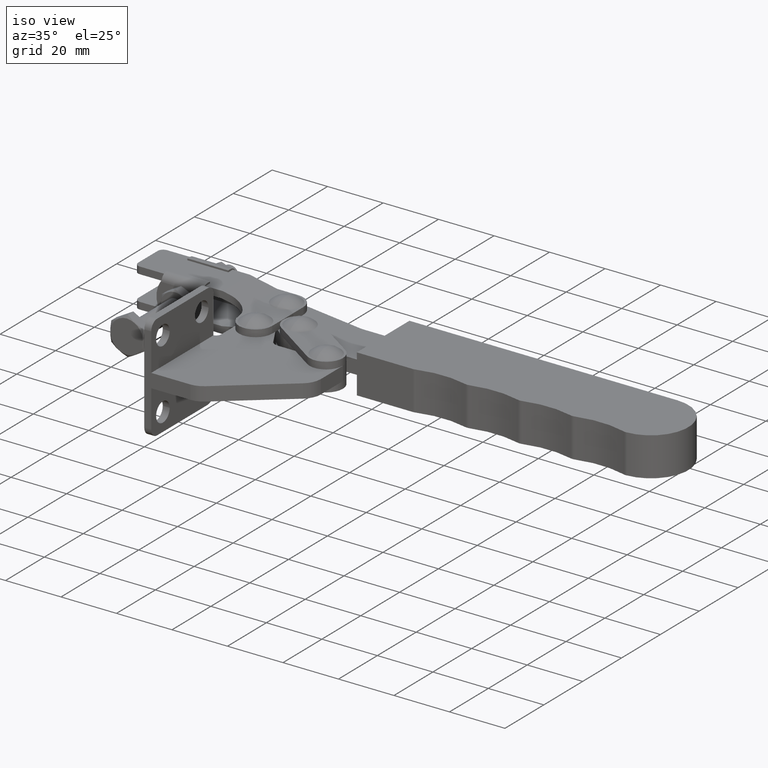
[diagram: clean part render]
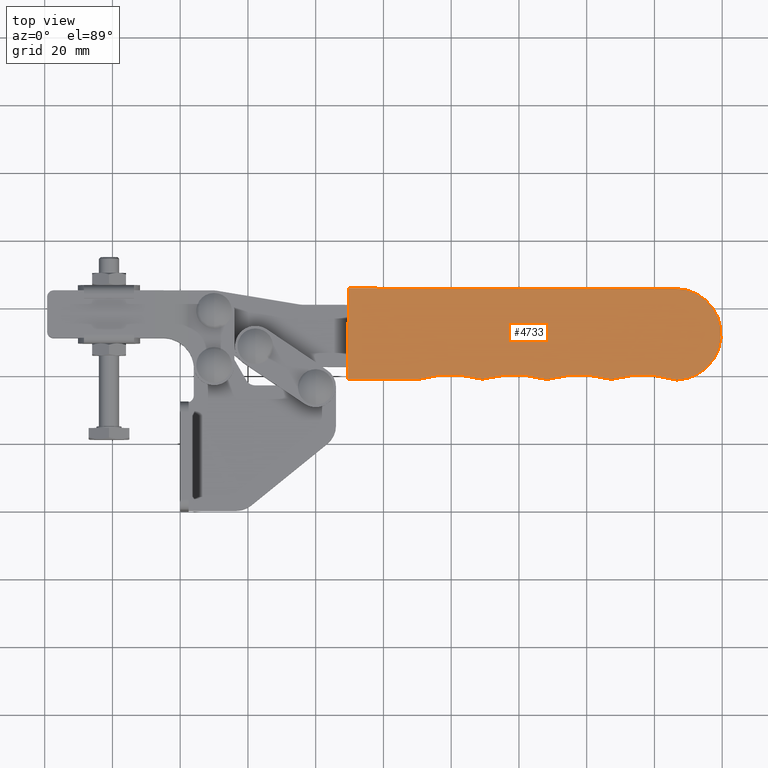
[diagram: tour spotlight — one face highlighted and labeled with its STEP entity id]
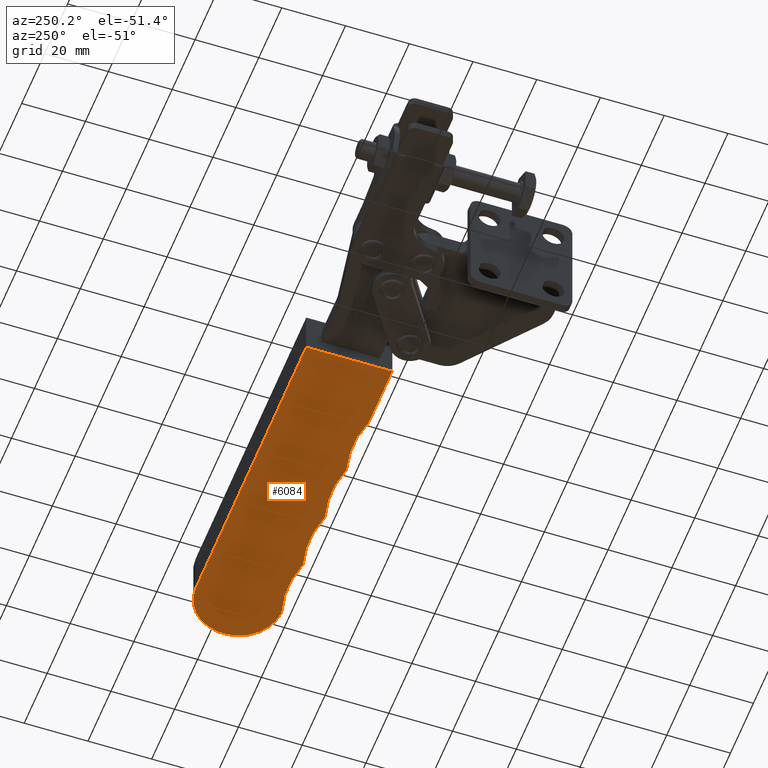
[diagram: tour spotlight — one face highlighted and labeled with its STEP entity id]
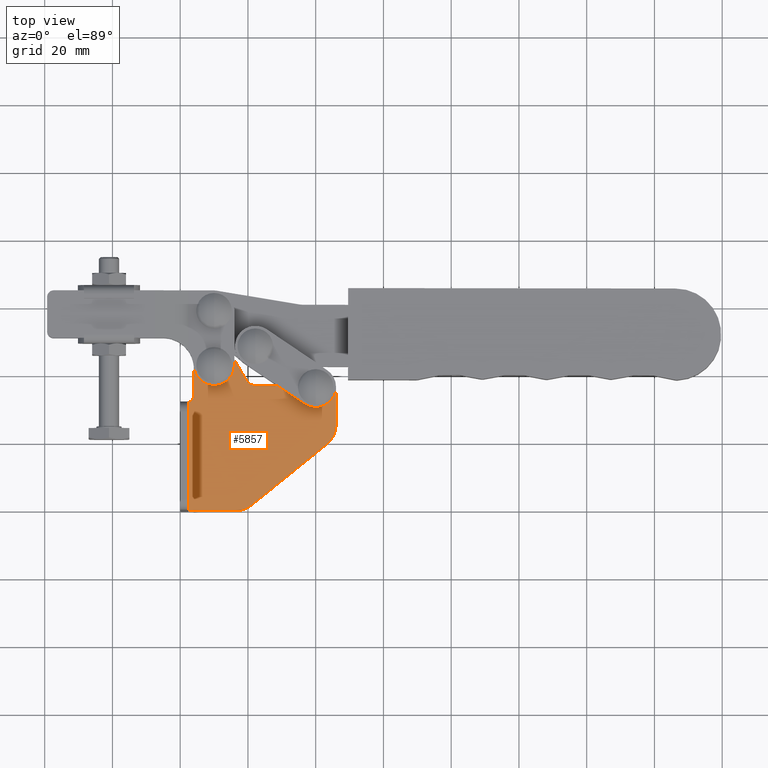
[diagram: tour spotlight — one face highlighted and labeled with its STEP entity id]
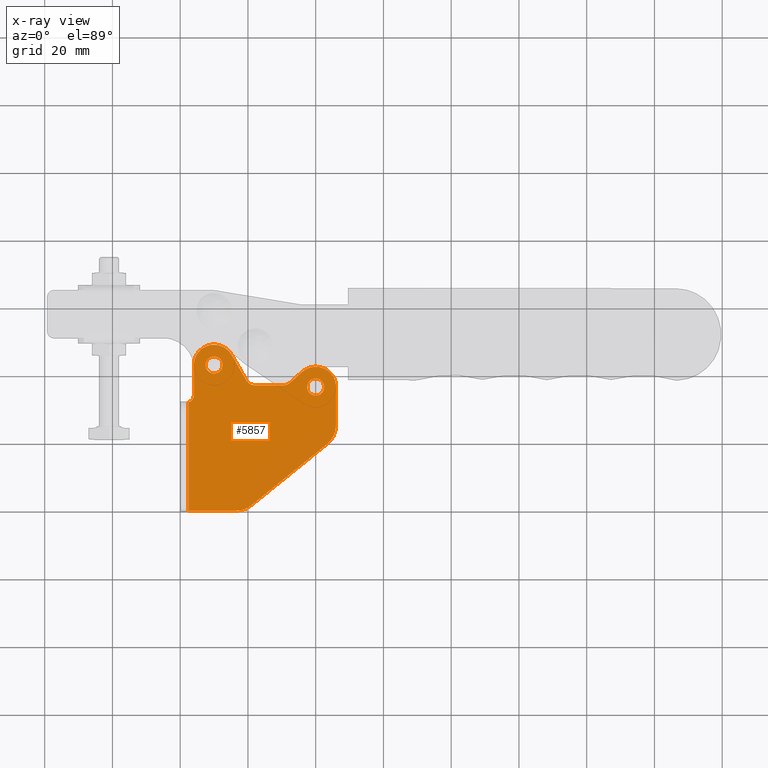
[diagram: x-ray of the same camera — body ghosted, this tour face saturated]
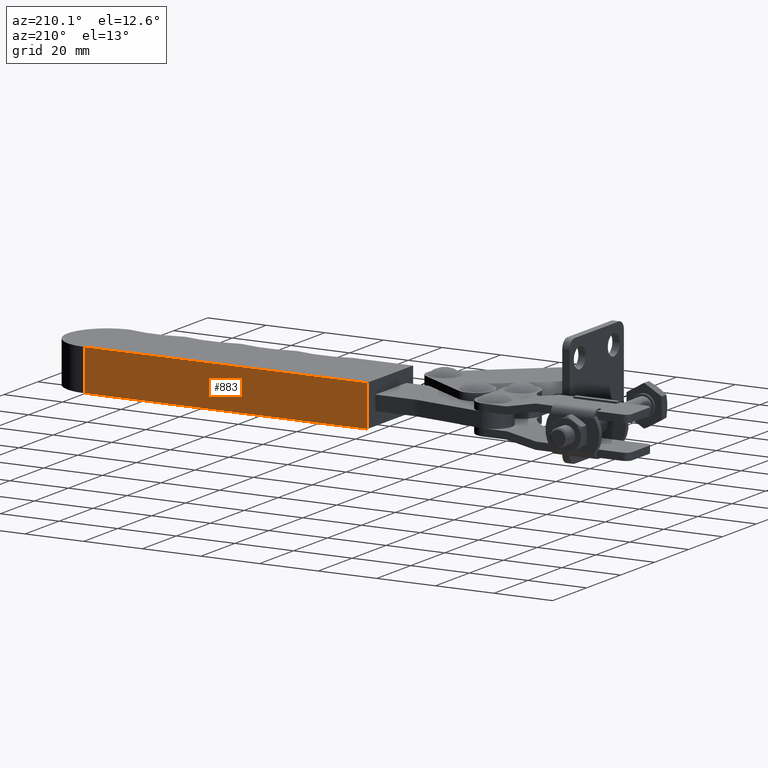
[diagram: tour spotlight — one face highlighted and labeled with its STEP entity id]
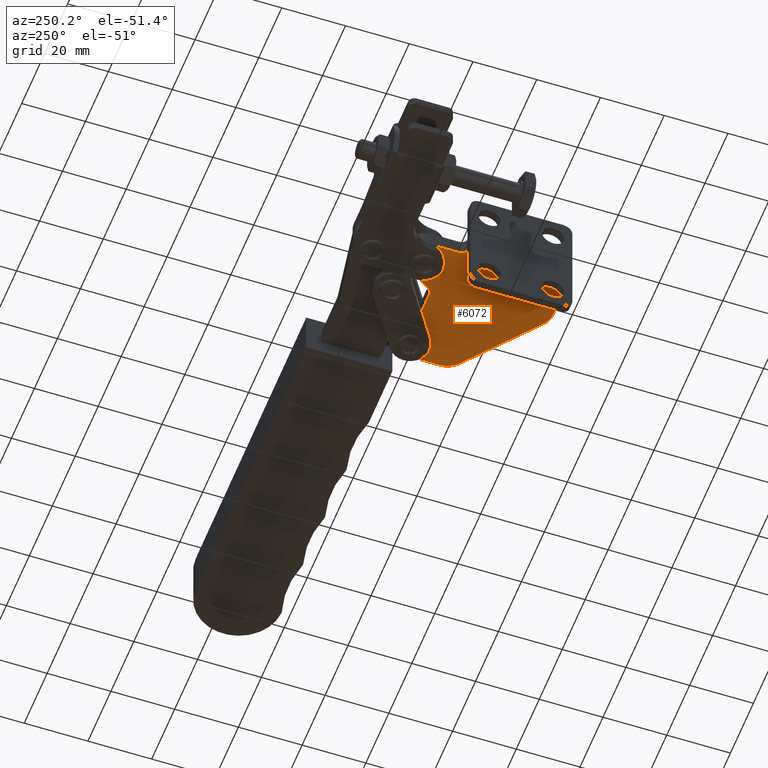
[diagram: tour spotlight — one face highlighted and labeled with its STEP entity id]
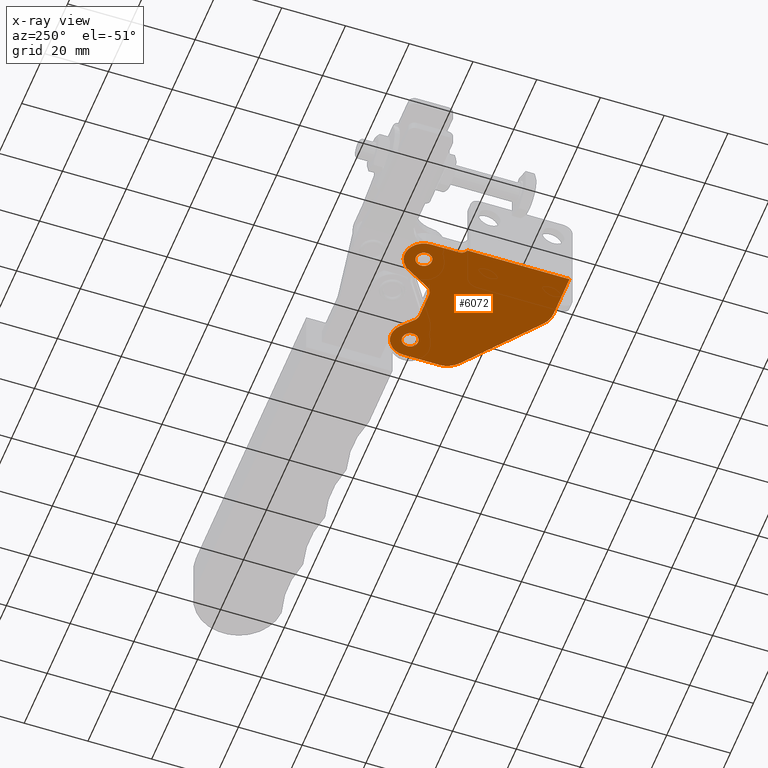
[diagram: x-ray of the same camera — body ghosted, this tour face saturated]
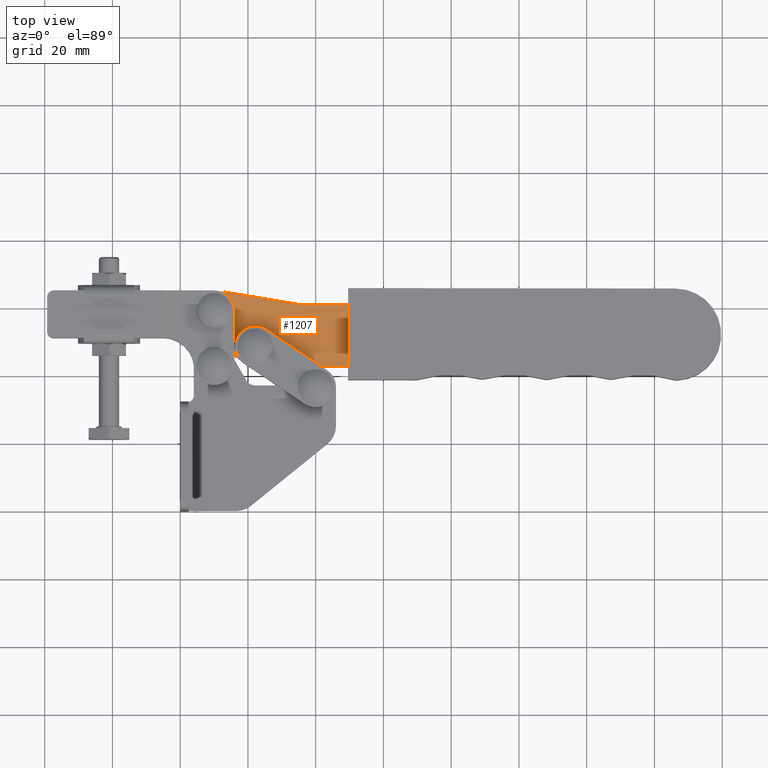
[diagram: tour spotlight — one face highlighted and labeled with its STEP entity id]
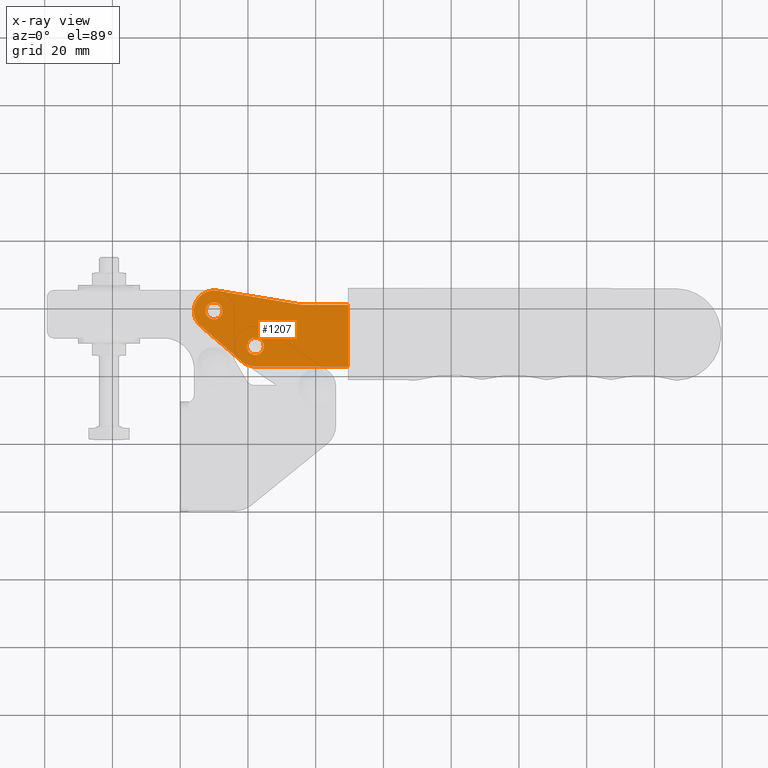
[diagram: x-ray of the same camera — body ghosted, this tour face saturated]
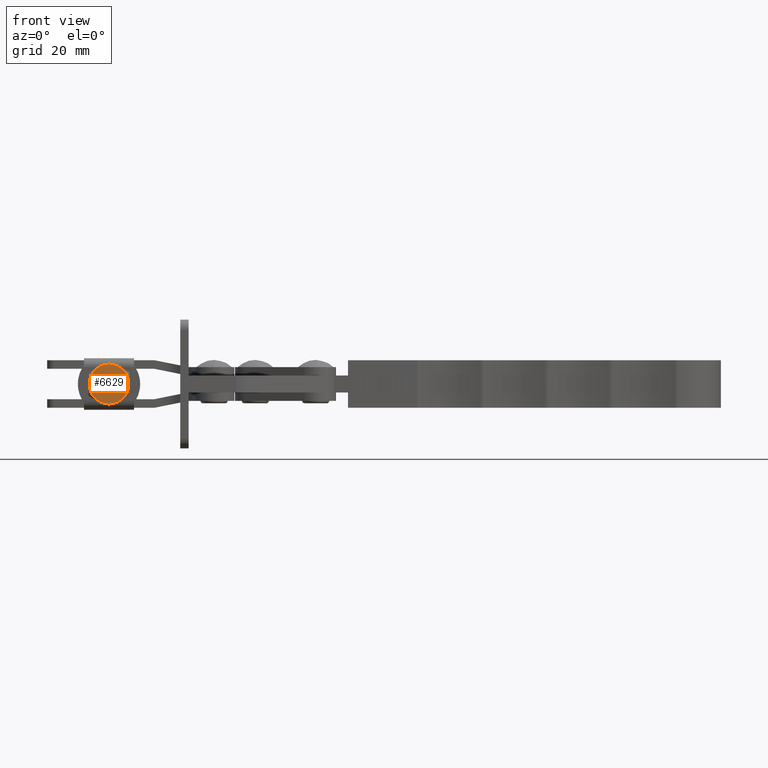
[diagram: tour spotlight — one face highlighted and labeled with its STEP entity id]
A machine part: a face-by-face anatomy tour. The part has 271 B-rep faces; the first image is the clean iso view, then the 7 largest visible faces are spotlighted one at a time (largest first), each with its STEP entity span.

Face 1 — top view, entity #4733. In plain terms, the highlighted planar face has unit normal (-0, -0, 1).
Definition (entity closure, byte-faithful):
#1 = CIRCLE ( 'NONE', #8297, 3.000000000000158500 ) ;
#55 = ORIENTED_EDGE ( 'NONE', *, *, #8341, .T. ) ;
#140 = EDGE_CURVE ( 'NONE', #1187, #3826, #5844, .T. ) ;
#179 = EDGE_CURVE ( 'NONE', #2755, #1187, #5269, .T. ) ;
#208 = VECTOR ( 'NONE', #4826, 1000.000000000000100 ) ;
#352 = DIRECTION ( 'NONE',  ( -1.108958682839140100E-014, -2.932455875418911600E-016, 1.000000000000000000 ) ) ;
#753 = AXIS2_PLACEMENT_3D ( 'NONE', #3870, #352, #953 ) ;
#844 = CARTESIAN_POINT ( 'NONE',  ( 136.5111265503220200, 8.015774924308965800, 7.000000000000215800 ) ) ;
#880 = CARTESIAN_POINT ( 'NONE',  ( 88.37882017578127100, 38.91182546141445200, 6.999999999999691800 ) ) ;
#886 = CARTESIAN_POINT ( 'NONE',  ( 126.3787864308396100, 38.86118344119974900, 7.000000000000112800 ) ) ;
#953 = DIRECTION ( 'NONE',  ( 0.9999991119752942300, -0.001332684742512857200, 1.108918617664399500E-014 ) ) ;
#1045 = PLANE ( 'NONE',  #753 ) ;
#1187 = VERTEX_POINT ( 'NONE', #4901 ) ;
#1245 = CARTESIAN_POINT ( 'NONE',  ( 79.77063265071005600, 8.091392181961614600, 6.999999999999587000 ) ) ;
#1352 = CARTESIAN_POINT ( 'NONE',  ( 49.58785542308158500, 65.64835697582714100, 6.999999999999269900 ) ) ;
#1386 = DIRECTION ( 'NONE',  ( 1.108958682839140700E-014, 2.932455875418911200E-016, -1.000000000000000000 ) ) ;
#1407 = DIRECTION ( 'NONE',  ( 0.9999991119752942300, -0.001332684742512848100, 1.108596721366429200E-014 ) ) ;
#1465 = ORIENTED_EDGE ( 'NONE', *, *, #4231, .T. ) ;
#1490 = DIRECTION ( 'NONE',  ( 1.108958682839140700E-014, 2.932455875418911200E-016, -1.000000000000000000 ) ) ;
#1534 = ORIENTED_EDGE ( 'NONE', *, *, #6954, .T. ) ;
#1734 = ORIENTED_EDGE ( 'NONE', *, *, #2344, .T. ) ;
#2092 = CARTESIAN_POINT ( 'NONE',  ( 127.9851173718016800, 38.85904270656227800, 7.000000000000131500 ) ) ;
#2157 = CIRCLE ( 'NONE', #6432, 32.00000000000000700 ) ;
#2344 = EDGE_CURVE ( 'NONE', #5936, #3406, #8708, .T. ) ;
#2438 = ORIENTED_EDGE ( 'NONE', *, *, #5134, .T. ) ;
#2465 = CARTESIAN_POINT ( 'NONE',  ( 107.3564751061141200, 38.81963475822492900, 6.999999999999902300 ) ) ;
#2479 = AXIS2_PLACEMENT_3D ( 'NONE', #1245, #5324, #5336 ) ;
#2611 = CARTESIAN_POINT ( 'NONE',  ( 69.73006471228593700, 38.62148976030108800, 6.999999999999484900 ) ) ;
#2652 = AXIS2_PLACEMENT_3D ( 'NONE', #8827, #8684, #3958 ) ;
#2677 = VECTOR ( 'NONE', #7455, 1000.000000000000100 ) ;
#2755 = VERTEX_POINT ( 'NONE', #4623 ) ;
#2765 = EDGE_CURVE ( 'NONE', #3826, #2808, #8582, .T. ) ;
#2808 = VERTEX_POINT ( 'NONE', #4808 ) ;
#2909 = AXIS2_PLACEMENT_3D ( 'NONE', #3000, #4237, #9268 ) ;
#2921 = CARTESIAN_POINT ( 'NONE',  ( 127.1858040113150700, 41.75059906114849900, 7.000000000000123500 ) ) ;
#3000 = CARTESIAN_POINT ( 'NONE',  ( 146.1995062261631200, 52.01959200017287800, 7.000000000000336600 ) ) ;
#3293 = VECTOR ( 'NONE', #4704, 1000.000000000000100 ) ;
#3300 = LINE ( 'NONE', #1352, #3293 ) ;
#3328 = VERTEX_POINT ( 'NONE', #7427 ) ;
#3334 = AXIS2_PLACEMENT_3D ( 'NONE', #844, #1386, #1407 ) ;
#3364 = EDGE_LOOP ( 'NONE', ( #9893, #1465, #8339, #1534, #5719, #4760, #7767, #8176, #3823, #9751, #2438, #55, #1734 ) ) ;
#3406 = VERTEX_POINT ( 'NONE', #4969 ) ;
#3498 = CARTESIAN_POINT ( 'NONE',  ( 146.2174974701870300, 65.51958001183948000, 7.000000000000341100 ) ) ;
#3566 = AXIS2_PLACEMENT_3D ( 'NONE', #8527, #3839, #4322 ) ;
#3786 = DIRECTION ( 'NONE',  ( 0.9999991119752943400, -0.001332684742512846800, 1.108596721366428000E-014 ) ) ;
#3788 = VERTEX_POINT ( 'NONE', #886 ) ;
#3823 = ORIENTED_EDGE ( 'NONE', *, *, #2765, .T. ) ;
#3826 = VERTEX_POINT ( 'NONE', #9701 ) ;
#3839 = DIRECTION ( 'NONE',  ( -1.108958682839140700E-014, -2.932455875418911200E-016, 1.000000000000000000 ) ) ;
#3870 = CARTESIAN_POINT ( 'NONE',  ( 117.7705989057712500, 8.040750161746126800, 7.000000000000008900 ) ) ;
#3958 = DIRECTION ( 'NONE',  ( 0.9999991119752942300, -0.001332684742512850000, 1.108596721366430800E-014 ) ) ;
#4231 = EDGE_CURVE ( 'NONE', #3788, #6227, #7883, .T. ) ;
#4237 = DIRECTION ( 'NONE',  ( -1.108958682839140700E-014, -2.932455875418911200E-016, 1.000000000000000000 ) ) ;
#4322 = DIRECTION ( 'NONE',  ( 0.9999991119752942300, -0.001332684742512379900, 1.098658201451950300E-014 ) ) ;
#4389 = EDGE_CURVE ( 'NONE', #3406, #3788, #7467, .T. ) ;
#4393 = DIRECTION ( 'NONE',  ( -1.108958682839140700E-014, -2.932455875418911200E-016, 1.000000000000000000 ) ) ;
#4421 = VERTEX_POINT ( 'NONE', #3498 ) ;
#4545 = EDGE_CURVE ( 'NONE', #2808, #5876, #7019, .T. ) ;
#4623 = CARTESIAN_POINT ( 'NONE',  ( 49.58785542308158500, 65.64835697582714100, 6.999999999999269900 ) ) ;
#4704 = DIRECTION ( 'NONE',  ( -0.9999991119752942300, 0.001332684742511708100, -1.108918617664399500E-014 ) ) ;
#4733 = ADVANCED_FACE ( 'NONE', ( #6681 ), #1045, .T. ) ;
#4760 = ORIENTED_EDGE ( 'NONE', *, *, #5733, .T. ) ;
#4802 = EDGE_CURVE ( 'NONE', #6227, #9023, #6397, .T. ) ;
#4808 = CARTESIAN_POINT ( 'NONE',  ( 70.59434018515830200, 38.74747896071826100, 6.999999999999494600 ) ) ;
#4826 = DIRECTION ( 'NONE',  ( 0.9999991119752942300, -0.001332684742512857200, 1.108918617664399500E-014 ) ) ;
#4853 = DIRECTION ( 'NONE',  ( -1.108958682839140700E-014, -2.932455875418911200E-016, 1.000000000000000000 ) ) ;
#4901 = CARTESIAN_POINT ( 'NONE',  ( 49.55187293503373500, 38.64838095249417900, 6.999999999999261000 ) ) ;
#4968 = CIRCLE ( 'NONE', #9722, 3.000000000000061300 ) ;
#4969 = CARTESIAN_POINT ( 'NONE',  ( 109.0072841298726400, 38.81743474827227700, 6.999999999999920100 ) ) ;
#5134 = EDGE_CURVE ( 'NONE', #5876, #8650, #4968, .T. ) ;
#5269 = LINE ( 'NONE', #7366, #2677 ) ;
#5324 = DIRECTION ( 'NONE',  ( 1.108958682839140700E-014, 2.932455875418911200E-016, -1.000000000000000000 ) ) ;
#5336 = DIRECTION ( 'NONE',  ( 0.9999991119752942300, -0.001332684742512850000, 1.108596721366430800E-014 ) ) ;
#5516 = CARTESIAN_POINT ( 'NONE',  ( 108.1857233696321400, 41.70274892825919000, 6.999999999999913000 ) ) ;
#5719 = ORIENTED_EDGE ( 'NONE', *, *, #8622, .T. ) ;
#5733 = EDGE_CURVE ( 'NONE', #4421, #2755, #3300, .T. ) ;
#5844 = LINE ( 'NONE', #2611, #208 ) ;
#5876 = VERTEX_POINT ( 'NONE', #880 ) ;
#5936 = VERTEX_POINT ( 'NONE', #2465 ) ;
#6227 = VERTEX_POINT ( 'NONE', #2092 ) ;
#6397 = CIRCLE ( 'NONE', #3334, 31.99999999999997200 ) ;
#6432 = AXIS2_PLACEMENT_3D ( 'NONE', #9880, #1490, #3786 ) ;
#6461 = CARTESIAN_POINT ( 'NONE',  ( 146.6086435480805200, 41.52756613993911100, 7.000000000000338400 ) ) ;
#6515 = AXIS2_PLACEMENT_3D ( 'NONE', #2921, #9148, #7569 ) ;
#6681 = FACE_OUTER_BOUND ( 'NONE', #3364, .T. ) ;
#6791 = CARTESIAN_POINT ( 'NONE',  ( 89.18583775625388900, 41.80124108136399700, 6.999999999999701600 ) ) ;
#6834 = DIRECTION ( 'NONE',  ( -1.108958682839140700E-014, -2.932455875418911200E-016, 1.000000000000000000 ) ) ;
#6885 = DIRECTION ( 'NONE',  ( 0.9999991119752942300, -0.001332684742512386000, 1.098658201451955400E-014 ) ) ;
#6915 = CARTESIAN_POINT ( 'NONE',  ( 89.98515111673791000, 38.90968472677706600, 6.999999999999709600 ) ) ;
#6954 = EDGE_CURVE ( 'NONE', #9023, #3328, #1, .T. ) ;
#6989 = DIRECTION ( 'NONE',  ( 0.9999991119752942300, -0.001332684742512342800, 1.098658201451919700E-014 ) ) ;
#7019 = CIRCLE ( 'NONE', #2479, 31.99999999999992900 ) ;
#7366 = CARTESIAN_POINT ( 'NONE',  ( 49.58785542308158500, 65.64835697582714100, 6.999999999999269900 ) ) ;
#7427 = CARTESIAN_POINT ( 'NONE',  ( 146.7255399257712200, 38.52984446558646400, 7.000000000000338400 ) ) ;
#7455 = DIRECTION ( 'NONE',  ( -0.001332684742512857200, -0.9999991119752942300, -3.080242502995326500E-016 ) ) ;
#7467 = CIRCLE ( 'NONE', #2652, 31.99999999999992900 ) ;
#7569 = DIRECTION ( 'NONE',  ( 0.9999991119752942300, -0.001332684742512379900, 1.098658201451950300E-014 ) ) ;
#7767 = ORIENTED_EDGE ( 'NONE', *, *, #179, .T. ) ;
#7883 = CIRCLE ( 'NONE', #6515, 3.000000000000075100 ) ;
#7983 = CARTESIAN_POINT ( 'NONE',  ( 145.7431420911297000, 38.65512689288498600, 7.000000000000327700 ) ) ;
#8176 = ORIENTED_EDGE ( 'NONE', *, *, #140, .T. ) ;
#8297 = AXIS2_PLACEMENT_3D ( 'NONE', #6461, #4853, #6989 ) ;
#8339 = ORIENTED_EDGE ( 'NONE', *, *, #4802, .T. ) ;
#8341 = EDGE_CURVE ( 'NONE', #8650, #5936, #2157, .T. ) ;
#8345 = CIRCLE ( 'NONE', #2909, 13.50000000000013000 ) ;
#8527 = CARTESIAN_POINT ( 'NONE',  ( 69.73406276651347500, 41.62148709622697900, 6.999999999999485700 ) ) ;
#8582 = CIRCLE ( 'NONE', #3566, 3.000000000000075100 ) ;
#8613 = DIRECTION ( 'NONE',  ( 0.9999991119752942300, -0.001332684742512373600, 1.098658201451945100E-014 ) ) ;
#8622 = EDGE_CURVE ( 'NONE', #3328, #4421, #8345, .T. ) ;
#8650 = VERTEX_POINT ( 'NONE', #6915 ) ;
#8684 = DIRECTION ( 'NONE',  ( 1.108958682839140700E-014, 2.932455875418911200E-016, -1.000000000000000000 ) ) ;
#8708 = CIRCLE ( 'NONE', #8836, 3.000000000000089300 ) ;
#8827 = CARTESIAN_POINT ( 'NONE',  ( 117.7705989057712500, 8.040750161746126800, 7.000000000000008900 ) ) ;
#8836 = AXIS2_PLACEMENT_3D ( 'NONE', #5516, #4393, #8613 ) ;
#9023 = VERTEX_POINT ( 'NONE', #7983 ) ;
#9148 = DIRECTION ( 'NONE',  ( -1.108958682839140700E-014, -2.932455875418911200E-016, 1.000000000000000000 ) ) ;
#9268 = DIRECTION ( 'NONE',  ( 0.9999991119752942300, -0.001332684742512657500, 1.111508004977721300E-014 ) ) ;
#9701 = CARTESIAN_POINT ( 'NONE',  ( 69.73006471228593700, 38.62148976030108800, 6.999999999999484900 ) ) ;
#9722 = AXIS2_PLACEMENT_3D ( 'NONE', #6791, #6834, #6885 ) ;
#9751 = ORIENTED_EDGE ( 'NONE', *, *, #4545, .T. ) ;
#9880 = CARTESIAN_POINT ( 'NONE',  ( 98.51116029526103500, 8.066416944524455300, 6.999999999999795700 ) ) ;
#9893 = ORIENTED_EDGE ( 'NONE', *, *, #4389, .T. ) ;

Face 2 — auxiliary view, entity #6084. In plain terms, the highlighted planar face has unit normal (-0, -0, 1).
Definition (entity closure, byte-faithful):
#14 = ORIENTED_EDGE ( 'NONE', *, *, #6121, .F. ) ;
#35 = EDGE_CURVE ( 'NONE', #2121, #2837, #3706, .T. ) ;
#99 = CARTESIAN_POINT ( 'NONE',  ( 88.37882017578141400, 38.91182546141445200, -7.000000000000304600 ) ) ;
#186 = CARTESIAN_POINT ( 'NONE',  ( 49.58785542308173400, 65.64835697582715600, -7.000000000000727400 ) ) ;
#212 = DIRECTION ( 'NONE',  ( 0.9999991119752942300, -0.001332684742512386000, 1.098658201451955400E-014 ) ) ;
#233 = CARTESIAN_POINT ( 'NONE',  ( 49.58785542308173400, 65.64835697582715600, -7.000000000000727400 ) ) ;
#568 = DIRECTION ( 'NONE',  ( 0.9999991119752942300, -0.001332684742512857200, 1.108918617664399500E-014 ) ) ;
#675 = VERTEX_POINT ( 'NONE', #3270 ) ;
#733 = EDGE_CURVE ( 'NONE', #2837, #4343, #3128, .T. ) ;
#743 = DIRECTION ( 'NONE',  ( 0.9999991119752942300, -0.001332684742512379900, 1.098658201451950300E-014 ) ) ;
#750 = PLANE ( 'NONE',  #1788 ) ;
#786 = DIRECTION ( 'NONE',  ( -1.108958682839140700E-014, -2.932455875418911200E-016, 1.000000000000000000 ) ) ;
#925 = CARTESIAN_POINT ( 'NONE',  ( 107.3564751061142700, 38.81963475822493600, -7.000000000000095000 ) ) ;
#946 = CARTESIAN_POINT ( 'NONE',  ( 126.3787864308397700, 38.86118344119974900, -6.999999999999883600 ) ) ;
#977 = EDGE_CURVE ( 'NONE', #7906, #5388, #2734, .T. ) ;
#1047 = EDGE_CURVE ( 'NONE', #5388, #2574, #6746, .T. ) ;
#1203 = AXIS2_PLACEMENT_3D ( 'NONE', #6299, #8440, #9545 ) ;
#1219 = ORIENTED_EDGE ( 'NONE', *, *, #4300, .F. ) ;
#1313 = CIRCLE ( 'NONE', #2269, 3.000000000000075100 ) ;
#1328 = AXIS2_PLACEMENT_3D ( 'NONE', #4553, #4742, #212 ) ;
#1445 = DIRECTION ( 'NONE',  ( -1.108958682839140700E-014, -2.932455875418911200E-016, 1.000000000000000000 ) ) ;
#1531 = VERTEX_POINT ( 'NONE', #2926 ) ;
#1640 = AXIS2_PLACEMENT_3D ( 'NONE', #3048, #4932, #7595 ) ;
#1759 = CARTESIAN_POINT ( 'NONE',  ( 49.55187293503388400, 38.64838095249417900, -7.000000000000735400 ) ) ;
#1788 = AXIS2_PLACEMENT_3D ( 'NONE', #4434, #4037, #3489 ) ;
#1831 = EDGE_CURVE ( 'NONE', #4343, #3120, #2290, .T. ) ;
#2022 = VECTOR ( 'NONE', #5736, 1000.000000000000100 ) ;
#2031 = LINE ( 'NONE', #4579, #2022 ) ;
#2073 = ORIENTED_EDGE ( 'NONE', *, *, #977, .F. ) ;
#2121 = VERTEX_POINT ( 'NONE', #946 ) ;
#2189 = FACE_OUTER_BOUND ( 'NONE', #9009, .T. ) ;
#2269 = AXIS2_PLACEMENT_3D ( 'NONE', #7581, #786, #743 ) ;
#2290 = CIRCLE ( 'NONE', #7858, 3.000000000000158500 ) ;
#2574 = VERTEX_POINT ( 'NONE', #7143 ) ;
#2651 = EDGE_CURVE ( 'NONE', #2574, #3593, #5887, .T. ) ;
#2734 = CIRCLE ( 'NONE', #4146, 31.99999999999992900 ) ;
#2837 = VERTEX_POINT ( 'NONE', #4082 ) ;
#2896 = ORIENTED_EDGE ( 'NONE', *, *, #5009, .F. ) ;
#2926 = CARTESIAN_POINT ( 'NONE',  ( 109.0072841298728000, 38.81743474827228400, -7.000000000000076400 ) ) ;
#2990 = AXIS2_PLACEMENT_3D ( 'NONE', #8237, #3590, #9035 ) ;
#3048 = CARTESIAN_POINT ( 'NONE',  ( 108.1857233696322900, 41.70274892825919700, -7.000000000000084400 ) ) ;
#3120 = VERTEX_POINT ( 'NONE', #4018 ) ;
#3125 = CARTESIAN_POINT ( 'NONE',  ( 136.5111265503221900, 8.015774924308972900, -6.999999999999780600 ) ) ;
#3128 = CIRCLE ( 'NONE', #9731, 31.99999999999997200 ) ;
#3270 = CARTESIAN_POINT ( 'NONE',  ( 146.2174974701872000, 65.51958001183949400, -6.999999999999655400 ) ) ;
#3479 = ORIENTED_EDGE ( 'NONE', *, *, #8238, .F. ) ;
#3489 = DIRECTION ( 'NONE',  ( 0.9999991119752942300, -0.001332684742512857200, 1.108918617664399500E-014 ) ) ;
#3564 = CARTESIAN_POINT ( 'NONE',  ( 145.7431420911298700, 38.65512689288499400, -6.999999999999668700 ) ) ;
#3590 = DIRECTION ( 'NONE',  ( 1.108958682839140700E-014, 2.932455875418911200E-016, -1.000000000000000000 ) ) ;
#3593 = VERTEX_POINT ( 'NONE', #925 ) ;
#3706 = CIRCLE ( 'NONE', #1203, 3.000000000000075100 ) ;
#4013 = EDGE_CURVE ( 'NONE', #6260, #5513, #8605, .T. ) ;
#4018 = CARTESIAN_POINT ( 'NONE',  ( 146.7255399257713900, 38.52984446558646400, -6.999999999999658100 ) ) ;
#4037 = DIRECTION ( 'NONE',  ( -1.108958682839140100E-014, -2.932455875418911600E-016, 1.000000000000000000 ) ) ;
#4082 = CARTESIAN_POINT ( 'NONE',  ( 127.9851173718018500, 38.85904270656227800, -6.999999999999865900 ) ) ;
#4146 = AXIS2_PLACEMENT_3D ( 'NONE', #7170, #5352, #9339 ) ;
#4300 = EDGE_CURVE ( 'NONE', #3593, #1531, #7549, .T. ) ;
#4343 = VERTEX_POINT ( 'NONE', #3564 ) ;
#4434 = CARTESIAN_POINT ( 'NONE',  ( 117.7705989057714200, 8.040750161746133900, -6.999999999999987600 ) ) ;
#4553 = CARTESIAN_POINT ( 'NONE',  ( 89.18583775625401700, 41.80124108136400500, -7.000000000000294900 ) ) ;
#4579 = CARTESIAN_POINT ( 'NONE',  ( 49.58785542308173400, 65.64835697582715600, -7.000000000000727400 ) ) ;
#4739 = VERTEX_POINT ( 'NONE', #233 ) ;
#4742 = DIRECTION ( 'NONE',  ( -1.108958682839140700E-014, -2.932455875418911200E-016, 1.000000000000000000 ) ) ;
#4932 = DIRECTION ( 'NONE',  ( -1.108958682839140700E-014, -2.932455875418911200E-016, 1.000000000000000000 ) ) ;
#5009 = EDGE_CURVE ( 'NONE', #3120, #675, #5552, .T. ) ;
#5033 = CARTESIAN_POINT ( 'NONE',  ( 146.1995062261632900, 52.01959200017287800, -6.999999999999659800 ) ) ;
#5059 = DIRECTION ( 'NONE',  ( -1.108958682839140700E-014, -2.932455875418911200E-016, 1.000000000000000000 ) ) ;
#5068 = DIRECTION ( 'NONE',  ( 0.9999991119752942300, -0.001332684742512657500, 1.111508004977721300E-014 ) ) ;
#5236 = ORIENTED_EDGE ( 'NONE', *, *, #4013, .F. ) ;
#5352 = DIRECTION ( 'NONE',  ( 1.108958682839140700E-014, 2.932455875418911200E-016, -1.000000000000000000 ) ) ;
#5388 = VERTEX_POINT ( 'NONE', #99 ) ;
#5409 = DIRECTION ( 'NONE',  ( 0.9999991119752942300, -0.001332684742512848100, 1.108596721366429200E-014 ) ) ;
#5423 = VECTOR ( 'NONE', #8005, 1000.000000000000100 ) ;
#5513 = VERTEX_POINT ( 'NONE', #6221 ) ;
#5552 = CIRCLE ( 'NONE', #8866, 13.50000000000013000 ) ;
#5684 = ORIENTED_EDGE ( 'NONE', *, *, #9368, .F. ) ;
#5694 = CARTESIAN_POINT ( 'NONE',  ( 146.6086435480806600, 41.52756613993911800, -6.999999999999658100 ) ) ;
#5736 = DIRECTION ( 'NONE',  ( -0.001332684742512857200, -0.9999991119752942300, -3.080242502995326500E-016 ) ) ;
#5806 = ORIENTED_EDGE ( 'NONE', *, *, #1047, .F. ) ;
#5887 = CIRCLE ( 'NONE', #9517, 32.00000000000002100 ) ;
#6084 = ADVANCED_FACE ( 'NONE', ( #2189 ), #750, .F. ) ;
#6121 = EDGE_CURVE ( 'NONE', #4739, #6260, #2031, .T. ) ;
#6221 = CARTESIAN_POINT ( 'NONE',  ( 69.73006471228607900, 38.62148976030109500, -7.000000000000511600 ) ) ;
#6260 = VERTEX_POINT ( 'NONE', #1759 ) ;
#6299 = CARTESIAN_POINT ( 'NONE',  ( 127.1858040113152400, 41.75059906114850600, -6.999999999999873900 ) ) ;
#6746 = CIRCLE ( 'NONE', #1328, 3.000000000000061300 ) ;
#7143 = CARTESIAN_POINT ( 'NONE',  ( 89.98515111673806600, 38.90968472677706600, -7.000000000000286900 ) ) ;
#7154 = EDGE_CURVE ( 'NONE', #675, #4739, #9811, .T. ) ;
#7170 = CARTESIAN_POINT ( 'NONE',  ( 79.77063265071019800, 8.091392181961621700, -7.000000000000409500 ) ) ;
#7301 = ORIENTED_EDGE ( 'NONE', *, *, #733, .F. ) ;
#7327 = CARTESIAN_POINT ( 'NONE',  ( 69.73006471228607900, 38.62148976030109500, -7.000000000000511600 ) ) ;
#7549 = CIRCLE ( 'NONE', #1640, 3.000000000000089300 ) ;
#7581 = CARTESIAN_POINT ( 'NONE',  ( 69.73406276651363100, 41.62148709622697900, -7.000000000000510700 ) ) ;
#7595 = DIRECTION ( 'NONE',  ( 0.9999991119752942300, -0.001332684742512373600, 1.098658201451945100E-014 ) ) ;
#7858 = AXIS2_PLACEMENT_3D ( 'NONE', #5694, #1445, #8136 ) ;
#7906 = VERTEX_POINT ( 'NONE', #8099 ) ;
#7999 = ORIENTED_EDGE ( 'NONE', *, *, #35, .F. ) ;
#8005 = DIRECTION ( 'NONE',  ( -0.9999991119752942300, 0.001332684742511708100, -1.108918617664399500E-014 ) ) ;
#8099 = CARTESIAN_POINT ( 'NONE',  ( 70.59434018515844400, 38.74747896071826100, -7.000000000000502700 ) ) ;
#8136 = DIRECTION ( 'NONE',  ( 0.9999991119752942300, -0.001332684742512342800, 1.098658201451919700E-014 ) ) ;
#8237 = CARTESIAN_POINT ( 'NONE',  ( 117.7705989057714200, 8.040750161746133900, -6.999999999999987600 ) ) ;
#8238 = EDGE_CURVE ( 'NONE', #5513, #7906, #1313, .T. ) ;
#8285 = ORIENTED_EDGE ( 'NONE', *, *, #2651, .F. ) ;
#8440 = DIRECTION ( 'NONE',  ( -1.108958682839140700E-014, -2.932455875418911200E-016, 1.000000000000000000 ) ) ;
#8550 = DIRECTION ( 'NONE',  ( 1.108958682839140700E-014, 2.932455875418911200E-016, -1.000000000000000000 ) ) ;
#8589 = ORIENTED_EDGE ( 'NONE', *, *, #1831, .F. ) ;
#8605 = LINE ( 'NONE', #7327, #8655 ) ;
#8655 = VECTOR ( 'NONE', #568, 1000.000000000000100 ) ;
#8661 = ORIENTED_EDGE ( 'NONE', *, *, #7154, .F. ) ;
#8866 = AXIS2_PLACEMENT_3D ( 'NONE', #5033, #5059, #5068 ) ;
#9009 = EDGE_LOOP ( 'NONE', ( #5684, #1219, #8285, #5806, #2073, #3479, #5236, #14, #8661, #2896, #8589, #7301, #7999 ) ) ;
#9035 = DIRECTION ( 'NONE',  ( 0.9999991119752942300, -0.001332684742512850000, 1.108596721366430800E-014 ) ) ;
#9055 = DIRECTION ( 'NONE',  ( 1.108958682839140700E-014, 2.932455875418911200E-016, -1.000000000000000000 ) ) ;
#9105 = CARTESIAN_POINT ( 'NONE',  ( 98.51116029526119200, 8.066416944524462500, -7.000000000000201600 ) ) ;
#9187 = DIRECTION ( 'NONE',  ( 0.9999991119752943400, -0.001332684742512846100, 1.108596721366427500E-014 ) ) ;
#9339 = DIRECTION ( 'NONE',  ( 0.9999991119752942300, -0.001332684742512850000, 1.108596721366430800E-014 ) ) ;
#9368 = EDGE_CURVE ( 'NONE', #1531, #2121, #9901, .T. ) ;
#9517 = AXIS2_PLACEMENT_3D ( 'NONE', #9105, #9055, #9187 ) ;
#9545 = DIRECTION ( 'NONE',  ( 0.9999991119752942300, -0.001332684742512379900, 1.098658201451950300E-014 ) ) ;
#9731 = AXIS2_PLACEMENT_3D ( 'NONE', #3125, #8550, #5409 ) ;
#9811 = LINE ( 'NONE', #186, #5423 ) ;
#9901 = CIRCLE ( 'NONE', #2990, 31.99999999999992900 ) ;

Face 3 — top view, entity #5857. An x-ray twin of the same camera follows (body ghosted, this face saturated) — the face is partly hidden behind the body. In plain terms, the highlighted planar face has unit normal (0, 0, 1).
Definition (entity closure, byte-faithful):
#17 = VECTOR ( 'NONE', #7663, 1000.000000000000100 ) ;
#77 = DIRECTION ( 'NONE',  ( -1.000000000000000000, -1.001705081012091700E-014, 0.0000000000000000000 ) ) ;
#104 = CARTESIAN_POINT ( 'NONE',  ( 0.0000000000000000000, 0.0000000000000000000, 2.500000000000000000 ) ) ;
#124 = VERTEX_POINT ( 'NONE', #8370 ) ;
#149 = DIRECTION ( 'NONE',  ( 0.0000000000000000000, -1.000000000000000000, 0.0000000000000000000 ) ) ;
#165 = DIRECTION ( 'NONE',  ( 1.000000000000000000, 0.0000000000000000000, 0.0000000000000000000 ) ) ;
#170 = DIRECTION ( 'NONE',  ( -0.0000000000000000000, 0.0000000000000000000, 1.000000000000000000 ) ) ;
#256 = CARTESIAN_POINT ( 'NONE',  ( 4.000000000002945200, 43.00000000000172700, 2.500000000000000000 ) ) ;
#312 = ORIENTED_EDGE ( 'NONE', *, *, #3006, .F. ) ;
#387 = VERTEX_POINT ( 'NONE', #2819 ) ;
#422 = VERTEX_POINT ( 'NONE', #5265 ) ;
#442 = AXIS2_PLACEMENT_3D ( 'NONE', #104, #170, #5431 ) ;
#470 = AXIS2_PLACEMENT_3D ( 'NONE', #1260, #8787, #8674 ) ;
#564 = DIRECTION ( 'NONE',  ( -0.0000000000000000000, 0.0000000000000000000, 1.000000000000000000 ) ) ;
#570 = CARTESIAN_POINT ( 'NONE',  ( 7.536256893266576100, -9.306502208409842300, 2.500000000000000000 ) ) ;
#630 = CARTESIAN_POINT ( 'NONE',  ( 2.499999999999986200, 32.00000000000002800, 2.499999999999946700 ) ) ;
#779 = VERTEX_POINT ( 'NONE', #2134 ) ;
#782 = ORIENTED_EDGE ( 'NONE', *, *, #6215, .T. ) ;
#787 = EDGE_CURVE ( 'NONE', #1549, #124, #3742, .T. ) ;
#907 = ORIENTED_EDGE ( 'NONE', *, *, #5588, .T. ) ;
#924 = DIRECTION ( 'NONE',  ( -0.0000000000000000000, 0.0000000000000000000, 1.000000000000000000 ) ) ;
#931 = ORIENTED_EDGE ( 'NONE', *, *, #4061, .T. ) ;
#980 = VERTEX_POINT ( 'NONE', #256 ) ;
#1105 = VERTEX_POINT ( 'NONE', #8293 ) ;
#1112 = VERTEX_POINT ( 'NONE', #5545 ) ;
#1130 = AXIS2_PLACEMENT_3D ( 'NONE', #3015, #5638, #1387 ) ;
#1157 = EDGE_CURVE ( 'NONE', #9779, #7276, #1180, .T. ) ;
#1180 = CIRCLE ( 'NONE', #7571, 2.500000000000000400 ) ;
#1246 = EDGE_LOOP ( 'NONE', ( #4483, #2410 ) ) ;
#1260 = CARTESIAN_POINT ( 'NONE',  ( 22.12435565298509500, 40.00000000000186200, 2.500000000000000000 ) ) ;
#1318 = CARTESIAN_POINT ( 'NONE',  ( 20.95524273735006900, 1.559978269801984600, 2.500000000000000000 ) ) ;
#1345 = VERTEX_POINT ( 'NONE', #3130 ) ;
#1387 = DIRECTION ( 'NONE',  ( 1.000000000000000000, 0.0000000000000000000, 0.0000000000000000000 ) ) ;
#1475 = EDGE_CURVE ( 'NONE', #3200, #4519, #9610, .T. ) ;
#1549 = VERTEX_POINT ( 'NONE', #5229 ) ;
#1749 = CARTESIAN_POINT ( 'NONE',  ( 7.500000000003116600, 43.00000000000180500, 2.500000000000000000 ) ) ;
#1778 = CIRCLE ( 'NONE', #7494, 6.000000000000109200 ) ;
#1798 = EDGE_CURVE ( 'NONE', #980, #3974, #2037, .T. ) ;
#1809 = CIRCLE ( 'NONE', #7377, 2.500000000000002200 ) ;
#1820 = ORIENTED_EDGE ( 'NONE', *, *, #1475, .T. ) ;
#1943 = VERTEX_POINT ( 'NONE', #4050 ) ;
#2028 = LINE ( 'NONE', #6694, #17 ) ;
#2037 = LINE ( 'NONE', #7981, #4348 ) ;
#2134 = CARTESIAN_POINT ( 'NONE',  ( 2.000000000003111300, 32.00000000000002800, 2.499999999999946700 ) ) ;
#2138 = VERTEX_POINT ( 'NONE', #8879 ) ;
#2175 = DIRECTION ( 'NONE',  ( -1.000000000000000000, -4.336808689941766800E-016, 0.0000000000000000000 ) ) ;
#2237 = PLANE ( 'NONE',  #442 ) ;
#2317 = VERTEX_POINT ( 'NONE', #3995 ) ;
#2410 = ORIENTED_EDGE ( 'NONE', *, *, #5986, .F. ) ;
#2423 = DIRECTION ( 'NONE',  ( -0.0000000000000000000, 0.0000000000000000000, 1.000000000000000000 ) ) ;
#2456 = CIRCLE ( 'NONE', #4573, 2.500000000000000400 ) ;
#2654 = EDGE_CURVE ( 'NONE', #2317, #1105, #6368, .T. ) ;
#2680 = VECTOR ( 'NONE', #7400, 1000.000000000000100 ) ;
#2741 = CARTESIAN_POINT ( 'NONE',  ( 43.40524273735279300, 19.73962981503743600, 2.500000000000000000 ) ) ;
#2756 = FACE_BOUND ( 'NONE', #4196, .T. ) ;
#2775 = CARTESIAN_POINT ( 'NONE',  ( 10.00000000000311800, 43.00000000000180500, 2.500000000000000000 ) ) ;
#2777 = FACE_OUTER_BOUND ( 'NONE', #4563, .T. ) ;
#2798 = ORIENTED_EDGE ( 'NONE', *, *, #3794, .F. ) ;
#2803 = FACE_BOUND ( 'NONE', #1246, .T. ) ;
#2819 = CARTESIAN_POINT ( 'NONE',  ( 32.44424667220158700, 37.77056552357013400, 2.500000000000000000 ) ) ;
#2877 = ORIENTED_EDGE ( 'NONE', *, *, #6924, .F. ) ;
#2951 = DIRECTION ( 'NONE',  ( -0.0000000000000000000, 0.0000000000000000000, 1.000000000000000000 ) ) ;
#3006 = EDGE_CURVE ( 'NONE', #422, #387, #8226, .T. ) ;
#3015 = CARTESIAN_POINT ( 'NONE',  ( 40.00000000000314100, 36.50000000000185500, 2.500000000000000000 ) ) ;
#3130 = CARTESIAN_POINT ( 'NONE',  ( 15.19615242270977800, 46.00000000000187600, 2.500000000000000000 ) ) ;
#3159 = CARTESIAN_POINT ( 'NONE',  ( 0.0000000000000000000, 0.0000000000000000000, 2.500000000000000000 ) ) ;
#3170 = DIRECTION ( 'NONE',  ( 1.000000000000000000, 0.0000000000000000000, 0.0000000000000000000 ) ) ;
#3200 = VERTEX_POINT ( 'NONE', #1318 ) ;
#3323 = DIRECTION ( 'NONE',  ( 1.000000000000000000, 0.0000000000000000000, 0.0000000000000000000 ) ) ;
#3375 = AXIS2_PLACEMENT_3D ( 'NONE', #9546, #924, #5840 ) ;
#3387 = CARTESIAN_POINT ( 'NONE',  ( 40.00000000000314100, 36.50000000000185500, 2.500000000000000000 ) ) ;
#3409 = CARTESIAN_POINT ( 'NONE',  ( 31.31569860407514100, 18.08012701892358000, 2.500000000000000000 ) ) ;
#3595 = CIRCLE ( 'NONE', #5997, 6.999999999999853500 ) ;
#3742 = LINE ( 'NONE', #5307, #9184 ) ;
#3794 = EDGE_CURVE ( 'NONE', #1112, #8997, #9787, .T. ) ;
#3867 = CIRCLE ( 'NONE', #5175, 2.500000000000002200 ) ;
#3974 = VERTEX_POINT ( 'NONE', #9174 ) ;
#3995 = CARTESIAN_POINT ( 'NONE',  ( 19.52627944163188500, 38.50000000000186200, 2.500000000000000000 ) ) ;
#4050 = CARTESIAN_POINT ( 'NONE',  ( 35.98521636184879900, 40.95886895286575700, 2.500000000000000000 ) ) ;
#4061 = EDGE_CURVE ( 'NONE', #7227, #8997, #8509, .T. ) ;
#4196 = EDGE_LOOP ( 'NONE', ( #6744, #4603 ) ) ;
#4257 = CIRCLE ( 'NONE', #5690, 6.999999999999857000 ) ;
#4348 = VECTOR ( 'NONE', #6996, 1000.000000000000000 ) ;
#4351 = EDGE_CURVE ( 'NONE', #1549, #1943, #7586, .T. ) ;
#4413 = VECTOR ( 'NONE', #4731, 1000.000000000000000 ) ;
#4483 = ORIENTED_EDGE ( 'NONE', *, *, #1157, .F. ) ;
#4494 = VERTEX_POINT ( 'NONE', #6132 ) ;
#4519 = VERTEX_POINT ( 'NONE', #2741 ) ;
#4563 = EDGE_LOOP ( 'NONE', ( #9825, #931, #2798, #4627, #1820, #907, #5091, #8459, #6763, #312, #5126, #9286, #7279, #782, #9281, #2877 ) ) ;
#4573 = AXIS2_PLACEMENT_3D ( 'NONE', #2775, #7139, #3323 ) ;
#4603 = ORIENTED_EDGE ( 'NONE', *, *, #8470, .F. ) ;
#4627 = ORIENTED_EDGE ( 'NONE', *, *, #5363, .T. ) ;
#4632 = DIRECTION ( 'NONE',  ( 1.000000000000000000, 0.0000000000000000000, 0.0000000000000000000 ) ) ;
#4673 = EDGE_CURVE ( 'NONE', #7227, #779, #6797, .T. ) ;
#4731 = DIRECTION ( 'NONE',  ( -1.000000000000000000, -1.048171284578084900E-016, 0.0000000000000000000 ) ) ;
#4765 = LINE ( 'NONE', #3409, #6830 ) ;
#4943 = CARTESIAN_POINT ( 'NONE',  ( 10.00000000000311800, 43.00000000000180500, 2.500000000000000000 ) ) ;
#5091 = ORIENTED_EDGE ( 'NONE', *, *, #787, .F. ) ;
#5126 = ORIENTED_EDGE ( 'NONE', *, *, #7077, .T. ) ;
#5175 = AXIS2_PLACEMENT_3D ( 'NONE', #5314, #5371, #5574 ) ;
#5229 = CARTESIAN_POINT ( 'NONE',  ( 46.00000000000307700, 36.50000000000202500, 2.500000000000000000 ) ) ;
#5233 = DIRECTION ( 'NONE',  ( 1.000000000000000000, 0.0000000000000000000, 0.0000000000000000000 ) ) ;
#5265 = CARTESIAN_POINT ( 'NONE',  ( 30.43685485312458300, 37.00000000000194000, 2.500000000000000000 ) ) ;
#5307 = CARTESIAN_POINT ( 'NONE',  ( 46.00000000000307700, 0.0000000000000000000, 2.500000000000000000 ) ) ;
#5314 = CARTESIAN_POINT ( 'NONE',  ( 40.00000000000314100, 36.50000000000185500, 2.500000000000000000 ) ) ;
#5363 = EDGE_CURVE ( 'NONE', #1112, #3200, #4257, .T. ) ;
#5371 = DIRECTION ( 'NONE',  ( -0.0000000000000000000, 0.0000000000000000000, 1.000000000000000000 ) ) ;
#5431 = DIRECTION ( 'NONE',  ( 1.000000000000000000, 0.0000000000000000000, 0.0000000000000000000 ) ) ;
#5545 = CARTESIAN_POINT ( 'NONE',  ( 16.55000000000072900, 1.734723475976807100E-015, 2.500000000000000000 ) ) ;
#5574 = DIRECTION ( 'NONE',  ( 1.000000000000000000, 0.0000000000000000000, 0.0000000000000000000 ) ) ;
#5588 = EDGE_CURVE ( 'NONE', #4519, #124, #3595, .T. ) ;
#5638 = DIRECTION ( 'NONE',  ( -0.0000000000000000000, 0.0000000000000000000, 1.000000000000000000 ) ) ;
#5690 = AXIS2_PLACEMENT_3D ( 'NONE', #9979, #10030, #165 ) ;
#5739 = DIRECTION ( 'NONE',  ( 0.4999999999999919000, -0.8660254037844433700, 0.0000000000000000000 ) ) ;
#5840 = DIRECTION ( 'NONE',  ( 1.000000000000000000, 0.0000000000000000000, 0.0000000000000000000 ) ) ;
#5857 = ADVANCED_FACE ( 'NONE', ( #2756, #2803, #2777 ), #2237, .T. ) ;
#5986 = EDGE_CURVE ( 'NONE', #7276, #9779, #2456, .T. ) ;
#5997 = AXIS2_PLACEMENT_3D ( 'NONE', #9929, #6169, #7578 ) ;
#6132 = CARTESIAN_POINT ( 'NONE',  ( 42.50000000000314800, 36.50000000000185500, 2.500000000000000000 ) ) ;
#6169 = DIRECTION ( 'NONE',  ( -0.0000000000000000000, 0.0000000000000000000, 1.000000000000000000 ) ) ;
#6209 = CIRCLE ( 'NONE', #6220, 2.000000000000001800 ) ;
#6215 = EDGE_CURVE ( 'NONE', #1345, #980, #1778, .T. ) ;
#6220 = AXIS2_PLACEMENT_3D ( 'NONE', #6811, #6909, #8397 ) ;
#6248 = CARTESIAN_POINT ( 'NONE',  ( 12.50000000000311800, 43.00000000000180500, 2.500000000000000000 ) ) ;
#6368 = CIRCLE ( 'NONE', #470, 2.999999999999960900 ) ;
#6477 = DIRECTION ( 'NONE',  ( 4.336808689941766800E-016, -1.000000000000000000, 0.0000000000000000000 ) ) ;
#6683 = CARTESIAN_POINT ( 'NONE',  ( 2.499999999999986200, 32.00000000000002800, 2.499999999999946700 ) ) ;
#6690 = CARTESIAN_POINT ( 'NONE',  ( 10.00000000000311800, 43.00000000000180500, 2.500000000000000000 ) ) ;
#6694 = CARTESIAN_POINT ( 'NONE',  ( -4.255377493971130900, 4.726075500125048700, 2.500000000000000000 ) ) ;
#6708 = VECTOR ( 'NONE', #2175, 1000.000000000000000 ) ;
#6744 = ORIENTED_EDGE ( 'NONE', *, *, #7360, .F. ) ;
#6763 = ORIENTED_EDGE ( 'NONE', *, *, #8463, .T. ) ;
#6797 = LINE ( 'NONE', #9360, #6708 ) ;
#6811 = CARTESIAN_POINT ( 'NONE',  ( 2.000000000003110400, 34.00000000000185500, 2.500000000000000000 ) ) ;
#6830 = VECTOR ( 'NONE', #5739, 1000.000000000000000 ) ;
#6857 = CARTESIAN_POINT ( 'NONE',  ( 2.499999999999992900, 2.620428211445205200E-016, 2.500000000000000000 ) ) ;
#6909 = DIRECTION ( 'NONE',  ( -0.0000000000000000000, 0.0000000000000000000, 1.000000000000000000 ) ) ;
#6924 = EDGE_CURVE ( 'NONE', #779, #3974, #6209, .T. ) ;
#6928 = VECTOR ( 'NONE', #77, 1000.000000000000000 ) ;
#6996 = DIRECTION ( 'NONE',  ( 1.850371707708621000E-014, -1.000000000000000000, 0.0000000000000000000 ) ) ;
#7077 = EDGE_CURVE ( 'NONE', #422, #1105, #8871, .T. ) ;
#7139 = DIRECTION ( 'NONE',  ( -0.0000000000000000000, 0.0000000000000000000, 1.000000000000000000 ) ) ;
#7227 = VERTEX_POINT ( 'NONE', #6683 ) ;
#7276 = VERTEX_POINT ( 'NONE', #6248 ) ;
#7279 = ORIENTED_EDGE ( 'NONE', *, *, #9915, .F. ) ;
#7360 = EDGE_CURVE ( 'NONE', #2138, #4494, #1809, .T. ) ;
#7377 = AXIS2_PLACEMENT_3D ( 'NONE', #3387, #564, #5233 ) ;
#7400 = DIRECTION ( 'NONE',  ( 0.7771459614568805300, 0.6293203910499489700, 0.0000000000000000000 ) ) ;
#7494 = AXIS2_PLACEMENT_3D ( 'NONE', #4943, #2951, #3170 ) ;
#7571 = AXIS2_PLACEMENT_3D ( 'NONE', #6690, #2423, #4632 ) ;
#7578 = DIRECTION ( 'NONE',  ( 1.000000000000000000, 0.0000000000000000000, 0.0000000000000000000 ) ) ;
#7586 = CIRCLE ( 'NONE', #1130, 6.000000000000192700 ) ;
#7663 = DIRECTION ( 'NONE',  ( -0.7431448254772690100, -0.6691306063589972400, 0.0000000000000000000 ) ) ;
#7981 = CARTESIAN_POINT ( 'NONE',  ( 4.000000000003741000, 7.401486830841405600E-014, 2.500000000000000000 ) ) ;
#8226 = CIRCLE ( 'NONE', #3375, 3.000000000000002700 ) ;
#8293 = CARTESIAN_POINT ( 'NONE',  ( 22.12435565298509500, 37.00000000000185500, 2.500000000000000000 ) ) ;
#8370 = CARTESIAN_POINT ( 'NONE',  ( 46.00000000000307700, 25.17965154523548700, 2.500000000000000000 ) ) ;
#8397 = DIRECTION ( 'NONE',  ( 1.000000000000000000, 0.0000000000000000000, 0.0000000000000000000 ) ) ;
#8459 = ORIENTED_EDGE ( 'NONE', *, *, #4351, .T. ) ;
#8463 = EDGE_CURVE ( 'NONE', #1943, #387, #2028, .T. ) ;
#8470 = EDGE_CURVE ( 'NONE', #4494, #2138, #3867, .T. ) ;
#8497 = VECTOR ( 'NONE', #6477, 1000.000000000000000 ) ;
#8509 = LINE ( 'NONE', #630, #8497 ) ;
#8674 = DIRECTION ( 'NONE',  ( 1.000000000000000000, 0.0000000000000000000, 0.0000000000000000000 ) ) ;
#8787 = DIRECTION ( 'NONE',  ( -0.0000000000000000000, 0.0000000000000000000, 1.000000000000000000 ) ) ;
#8871 = LINE ( 'NONE', #9541, #6928 ) ;
#8879 = CARTESIAN_POINT ( 'NONE',  ( 37.50000000000314100, 36.50000000000185500, 2.500000000000000000 ) ) ;
#8997 = VERTEX_POINT ( 'NONE', #6857 ) ;
#9174 = CARTESIAN_POINT ( 'NONE',  ( 4.000000000003112200, 34.00000000000185500, 2.500000000000000000 ) ) ;
#9184 = VECTOR ( 'NONE', #149, 1000.000000000000000 ) ;
#9281 = ORIENTED_EDGE ( 'NONE', *, *, #1798, .T. ) ;
#9286 = ORIENTED_EDGE ( 'NONE', *, *, #2654, .F. ) ;
#9360 = CARTESIAN_POINT ( 'NONE',  ( 2.499999999999986200, 32.00000000000002800, 2.499999999999946700 ) ) ;
#9541 = CARTESIAN_POINT ( 'NONE',  ( -3.706308799744903300E-013, 37.00000000000163400, 2.500000000000000000 ) ) ;
#9546 = CARTESIAN_POINT ( 'NONE',  ( 30.43685485312458300, 40.00000000000194700, 2.500000000000000000 ) ) ;
#9610 = LINE ( 'NONE', #570, #2680 ) ;
#9779 = VERTEX_POINT ( 'NONE', #1749 ) ;
#9787 = LINE ( 'NONE', #3159, #4413 ) ;
#9825 = ORIENTED_EDGE ( 'NONE', *, *, #4673, .F. ) ;
#9915 = EDGE_CURVE ( 'NONE', #1345, #2317, #4765, .T. ) ;
#9929 = CARTESIAN_POINT ( 'NONE',  ( 39.00000000000323300, 25.17965154523548700, 2.500000000000000000 ) ) ;
#9979 = CARTESIAN_POINT ( 'NONE',  ( 16.55000000000072900, 7.000000000000015100, 2.500000000000000000 ) ) ;
#10030 = DIRECTION ( 'NONE',  ( -0.0000000000000000000, 0.0000000000000000000, 1.000000000000000000 ) ) ;

Face 4 — auxiliary view, entity #883. In plain terms, the highlighted planar face has unit normal (-0.0013, -1, -0).
Definition (entity closure, byte-faithful):
#186 = CARTESIAN_POINT ( 'NONE',  ( 49.58785542308173400, 65.64835697582715600, -7.000000000000727400 ) ) ;
#233 = CARTESIAN_POINT ( 'NONE',  ( 49.58785542308173400, 65.64835697582715600, -7.000000000000727400 ) ) ;
#515 = AXIS2_PLACEMENT_3D ( 'NONE', #3177, #3002, #6612 ) ;
#629 = DIRECTION ( 'NONE',  ( 1.108958682839140700E-014, 2.932455875418911200E-016, -1.000000000000000000 ) ) ;
#675 = VERTEX_POINT ( 'NONE', #3270 ) ;
#695 = CARTESIAN_POINT ( 'NONE',  ( 49.58785542308158500, 65.64835697582714100, 6.999999999999269900 ) ) ;
#883 = ADVANCED_FACE ( 'NONE', ( #5051 ), #3259, .F. ) ;
#995 = EDGE_CURVE ( 'NONE', #4421, #675, #9799, .T. ) ;
#1074 = LINE ( 'NONE', #695, #9362 ) ;
#1352 = CARTESIAN_POINT ( 'NONE',  ( 49.58785542308158500, 65.64835697582714100, 6.999999999999269900 ) ) ;
#2381 = ORIENTED_EDGE ( 'NONE', *, *, #5733, .F. ) ;
#2755 = VERTEX_POINT ( 'NONE', #4623 ) ;
#3002 = DIRECTION ( 'NONE',  ( -0.001332684742511708100, -0.9999991119752942300, -3.080242502995199300E-016 ) ) ;
#3177 = CARTESIAN_POINT ( 'NONE',  ( 49.58785542308158500, 65.64835697582714100, 6.999999999999269900 ) ) ;
#3259 = PLANE ( 'NONE',  #515 ) ;
#3270 = CARTESIAN_POINT ( 'NONE',  ( 146.2174974701872000, 65.51958001183949400, -6.999999999999655400 ) ) ;
#3293 = VECTOR ( 'NONE', #4704, 1000.000000000000100 ) ;
#3300 = LINE ( 'NONE', #1352, #3293 ) ;
#3498 = CARTESIAN_POINT ( 'NONE',  ( 146.2174974701870300, 65.51958001183948000, 7.000000000000341100 ) ) ;
#3605 = VECTOR ( 'NONE', #9379, 1000.000000000000000 ) ;
#4356 = ORIENTED_EDGE ( 'NONE', *, *, #995, .T. ) ;
#4421 = VERTEX_POINT ( 'NONE', #3498 ) ;
#4623 = CARTESIAN_POINT ( 'NONE',  ( 49.58785542308158500, 65.64835697582714100, 6.999999999999269900 ) ) ;
#4704 = DIRECTION ( 'NONE',  ( -0.9999991119752942300, 0.001332684742511708100, -1.108918617664399500E-014 ) ) ;
#4739 = VERTEX_POINT ( 'NONE', #233 ) ;
#5051 = FACE_OUTER_BOUND ( 'NONE', #6203, .T. ) ;
#5423 = VECTOR ( 'NONE', #8005, 1000.000000000000100 ) ;
#5733 = EDGE_CURVE ( 'NONE', #4421, #2755, #3300, .T. ) ;
#6130 = ORIENTED_EDGE ( 'NONE', *, *, #7154, .T. ) ;
#6203 = EDGE_LOOP ( 'NONE', ( #6130, #9240, #2381, #4356 ) ) ;
#6612 = DIRECTION ( 'NONE',  ( 0.9999991119752942300, -0.001332684742511708100, 1.108918617664399500E-014 ) ) ;
#7154 = EDGE_CURVE ( 'NONE', #675, #4739, #9811, .T. ) ;
#8005 = DIRECTION ( 'NONE',  ( -0.9999991119752942300, 0.001332684742511708100, -1.108918617664399500E-014 ) ) ;
#8027 = CARTESIAN_POINT ( 'NONE',  ( 146.2174974701870300, 65.51958001183948000, 7.000000000000341100 ) ) ;
#8278 = EDGE_CURVE ( 'NONE', #2755, #4739, #1074, .T. ) ;
#9240 = ORIENTED_EDGE ( 'NONE', *, *, #8278, .F. ) ;
#9362 = VECTOR ( 'NONE', #629, 1000.000000000000000 ) ;
#9379 = DIRECTION ( 'NONE',  ( 1.108958682839140700E-014, 2.932455875418911200E-016, -1.000000000000000000 ) ) ;
#9799 = LINE ( 'NONE', #8027, #3605 ) ;
#9811 = LINE ( 'NONE', #186, #5423 ) ;

Face 5 — auxiliary view, entity #6072. An x-ray twin of the same camera follows (body ghosted, this face saturated) — the face is partly hidden behind the body. In plain terms, the highlighted planar face has unit normal (0, 0, -1).
Definition (entity closure, byte-faithful):
#36 = AXIS2_PLACEMENT_3D ( 'NONE', #5826, #1627, #6927 ) ;
#120 = AXIS2_PLACEMENT_3D ( 'NONE', #3233, #5961, #10014 ) ;
#475 = EDGE_CURVE ( 'NONE', #3832, #8137, #8679, .T. ) ;
#572 = VERTEX_POINT ( 'NONE', #3201 ) ;
#590 = CARTESIAN_POINT ( 'NONE',  ( 4.000000000002945200, 43.00000000000172700, -2.500000000000000000 ) ) ;
#761 = AXIS2_PLACEMENT_3D ( 'NONE', #6380, #5605, #1430 ) ;
#778 = CARTESIAN_POINT ( 'NONE',  ( 22.12435565298509500, 40.00000000000186200, -2.500000000000000000 ) ) ;
#789 = VERTEX_POINT ( 'NONE', #1118 ) ;
#832 = CARTESIAN_POINT ( 'NONE',  ( -4.255377493971130900, 4.726075500125048700, -2.500000000000000000 ) ) ;
#972 = CARTESIAN_POINT ( 'NONE',  ( 10.00000000000311800, 43.00000000000180500, -2.500000000000000000 ) ) ;
#986 = LINE ( 'NONE', #10000, #1079 ) ;
#1008 = DIRECTION ( 'NONE',  ( 1.000000000000000000, 0.0000000000000000000, 0.0000000000000000000 ) ) ;
#1014 = VECTOR ( 'NONE', #8624, 1000.000000000000100 ) ;
#1034 = DIRECTION ( 'NONE',  ( -0.0000000000000000000, -0.0000000000000000000, 1.000000000000000000 ) ) ;
#1059 = LINE ( 'NONE', #832, #1014 ) ;
#1079 = VECTOR ( 'NONE', #1468, 1000.000000000000000 ) ;
#1090 = CARTESIAN_POINT ( 'NONE',  ( 4.000000000003741000, 7.401486830841405600E-014, -2.500000000000000000 ) ) ;
#1118 = CARTESIAN_POINT ( 'NONE',  ( 46.00000000000307700, 36.50000000000202500, -2.500000000000000000 ) ) ;
#1146 = DIRECTION ( 'NONE',  ( 1.000000000000000000, 0.0000000000000000000, 0.0000000000000000000 ) ) ;
#1204 = AXIS2_PLACEMENT_3D ( 'NONE', #7461, #7495, #7504 ) ;
#1205 = DIRECTION ( 'NONE',  ( -0.0000000000000000000, -0.0000000000000000000, 1.000000000000000000 ) ) ;
#1225 = CARTESIAN_POINT ( 'NONE',  ( 16.55000000000072900, 1.734723475976807100E-015, -2.500000000000000000 ) ) ;
#1256 = EDGE_CURVE ( 'NONE', #5846, #6648, #8209, .T. ) ;
#1274 = CARTESIAN_POINT ( 'NONE',  ( 2.499999999999986200, 32.00000000000002800, -2.499999999999946700 ) ) ;
#1349 = CARTESIAN_POINT ( 'NONE',  ( 39.00000000000323300, 25.17965154523548700, -2.500000000000000000 ) ) ;
#1362 = DIRECTION ( 'NONE',  ( 1.000000000000000000, 0.0000000000000000000, 0.0000000000000000000 ) ) ;
#1419 = EDGE_CURVE ( 'NONE', #3971, #9472, #6371, .T. ) ;
#1430 = DIRECTION ( 'NONE',  ( 1.000000000000000000, 0.0000000000000000000, 0.0000000000000000000 ) ) ;
#1468 = DIRECTION ( 'NONE',  ( -1.000000000000000000, -4.336808689941766800E-016, -0.0000000000000000000 ) ) ;
#1562 = CIRCLE ( 'NONE', #1743, 2.500000000000000400 ) ;
#1569 = DIRECTION ( 'NONE',  ( 0.4999999999999919000, -0.8660254037844433700, 0.0000000000000000000 ) ) ;
#1618 = AXIS2_PLACEMENT_3D ( 'NONE', #1349, #8411, #5470 ) ;
#1627 = DIRECTION ( 'NONE',  ( -0.0000000000000000000, -0.0000000000000000000, 1.000000000000000000 ) ) ;
#1664 = CIRCLE ( 'NONE', #2101, 6.000000000000192700 ) ;
#1743 = AXIS2_PLACEMENT_3D ( 'NONE', #972, #1034, #1008 ) ;
#1960 = VERTEX_POINT ( 'NONE', #6179 ) ;
#1969 = CARTESIAN_POINT ( 'NONE',  ( 32.44424667220158700, 37.77056552357013400, -2.500000000000000000 ) ) ;
#2101 = AXIS2_PLACEMENT_3D ( 'NONE', #6216, #3862, #6293 ) ;
#2151 = FACE_BOUND ( 'NONE', #6489, .T. ) ;
#2159 = FACE_BOUND ( 'NONE', #9313, .T. ) ;
#2179 = AXIS2_PLACEMENT_3D ( 'NONE', #3480, #7008, #6416 ) ;
#2190 = FACE_OUTER_BOUND ( 'NONE', #5143, .T. ) ;
#2264 = EDGE_CURVE ( 'NONE', #572, #6250, #5298, .T. ) ;
#2531 = ORIENTED_EDGE ( 'NONE', *, *, #8815, .T. ) ;
#2532 = ORIENTED_EDGE ( 'NONE', *, *, #4715, .T. ) ;
#2668 = CARTESIAN_POINT ( 'NONE',  ( 30.43685485312458300, 40.00000000000194700, -2.500000000000000000 ) ) ;
#2729 = CARTESIAN_POINT ( 'NONE',  ( 30.43685485312458300, 37.00000000000194000, -2.500000000000000000 ) ) ;
#2813 = LINE ( 'NONE', #5682, #4287 ) ;
#3030 = EDGE_CURVE ( 'NONE', #789, #7898, #6146, .T. ) ;
#3201 = CARTESIAN_POINT ( 'NONE',  ( 7.500000000003116600, 43.00000000000180500, -2.500000000000000000 ) ) ;
#3233 = CARTESIAN_POINT ( 'NONE',  ( 2.000000000003110400, 34.00000000000185500, -2.500000000000000000 ) ) ;
#3353 = ORIENTED_EDGE ( 'NONE', *, *, #1419, .F. ) ;
#3397 = EDGE_CURVE ( 'NONE', #6648, #4646, #2813, .T. ) ;
#3480 = CARTESIAN_POINT ( 'NONE',  ( 16.55000000000072900, 7.000000000000015100, -2.500000000000000000 ) ) ;
#3527 = ORIENTED_EDGE ( 'NONE', *, *, #3030, .T. ) ;
#3641 = ORIENTED_EDGE ( 'NONE', *, *, #9190, .T. ) ;
#3713 = EDGE_CURVE ( 'NONE', #9472, #4998, #9380, .T. ) ;
#3723 = VECTOR ( 'NONE', #6285, 1000.000000000000000 ) ;
#3790 = AXIS2_PLACEMENT_3D ( 'NONE', #778, #9073, #1146 ) ;
#3830 = CARTESIAN_POINT ( 'NONE',  ( 20.95524273735006900, 1.559978269801984600, -2.500000000000000000 ) ) ;
#3832 = VERTEX_POINT ( 'NONE', #1274 ) ;
#3841 = DIRECTION ( 'NONE',  ( -0.0000000000000000000, -0.0000000000000000000, 1.000000000000000000 ) ) ;
#3862 = DIRECTION ( 'NONE',  ( -0.0000000000000000000, -0.0000000000000000000, 1.000000000000000000 ) ) ;
#3865 = EDGE_CURVE ( 'NONE', #8768, #1960, #9919, .T. ) ;
#3947 = VECTOR ( 'NONE', #4753, 1000.000000000000000 ) ;
#3971 = VERTEX_POINT ( 'NONE', #7150 ) ;
#4099 = PLANE ( 'NONE',  #761 ) ;
#4187 = CARTESIAN_POINT ( 'NONE',  ( 46.00000000000307700, 0.0000000000000000000, -2.500000000000000000 ) ) ;
#4283 = ORIENTED_EDGE ( 'NONE', *, *, #6361, .F. ) ;
#4287 = VECTOR ( 'NONE', #4515, 1000.000000000000100 ) ;
#4296 = EDGE_CURVE ( 'NONE', #7691, #4998, #7619, .T. ) ;
#4458 = DIRECTION ( 'NONE',  ( 1.000000000000000000, 0.0000000000000000000, 0.0000000000000000000 ) ) ;
#4515 = DIRECTION ( 'NONE',  ( 0.7771459614568805300, 0.6293203910499489700, 0.0000000000000000000 ) ) ;
#4564 = CARTESIAN_POINT ( 'NONE',  ( 10.00000000000311800, 43.00000000000180500, -2.500000000000000000 ) ) ;
#4588 = AXIS2_PLACEMENT_3D ( 'NONE', #4564, #1205, #4458 ) ;
#4646 = VERTEX_POINT ( 'NONE', #9702 ) ;
#4709 = CARTESIAN_POINT ( 'NONE',  ( 42.50000000000314800, 36.50000000000185500, -2.500000000000000000 ) ) ;
#4715 = EDGE_CURVE ( 'NONE', #5294, #8020, #6745, .T. ) ;
#4722 = ORIENTED_EDGE ( 'NONE', *, *, #9710, .F. ) ;
#4753 = DIRECTION ( 'NONE',  ( -1.000000000000000000, -1.001705081012091700E-014, -0.0000000000000000000 ) ) ;
#4775 = CARTESIAN_POINT ( 'NONE',  ( 4.000000000003112200, 34.00000000000185500, -2.500000000000000000 ) ) ;
#4790 = ORIENTED_EDGE ( 'NONE', *, *, #6453, .T. ) ;
#4864 = ORIENTED_EDGE ( 'NONE', *, *, #4296, .T. ) ;
#4883 = CIRCLE ( 'NONE', #1204, 2.500000000000002200 ) ;
#4998 = VERTEX_POINT ( 'NONE', #4775 ) ;
#5054 = CARTESIAN_POINT ( 'NONE',  ( 2.499999999999986200, 32.00000000000002800, -2.499999999999946700 ) ) ;
#5104 = AXIS2_PLACEMENT_3D ( 'NONE', #2668, #9596, #7714 ) ;
#5143 = EDGE_LOOP ( 'NONE', ( #4790, #4864, #5927, #3353, #2531, #8725, #4722, #7299, #9353, #4283, #3527, #9940, #5725, #9794, #3641, #7812 ) ) ;
#5161 = ORIENTED_EDGE ( 'NONE', *, *, #8215, .T. ) ;
#5166 = CARTESIAN_POINT ( 'NONE',  ( 12.50000000000311800, 43.00000000000180500, -2.500000000000000000 ) ) ;
#5205 = EDGE_CURVE ( 'NONE', #8020, #5294, #4883, .T. ) ;
#5294 = VERTEX_POINT ( 'NONE', #8649 ) ;
#5298 = CIRCLE ( 'NONE', #36, 2.500000000000000400 ) ;
#5470 = DIRECTION ( 'NONE',  ( 1.000000000000000000, 0.0000000000000000000, 0.0000000000000000000 ) ) ;
#5565 = ORIENTED_EDGE ( 'NONE', *, *, #2264, .T. ) ;
#5605 = DIRECTION ( 'NONE',  ( 0.0000000000000000000, 0.0000000000000000000, -1.000000000000000000 ) ) ;
#5609 = VERTEX_POINT ( 'NONE', #8013 ) ;
#5682 = CARTESIAN_POINT ( 'NONE',  ( 7.536256893266576100, -9.306502208409842300, -2.500000000000000000 ) ) ;
#5725 = ORIENTED_EDGE ( 'NONE', *, *, #3397, .F. ) ;
#5826 = CARTESIAN_POINT ( 'NONE',  ( 10.00000000000311800, 43.00000000000180500, -2.500000000000000000 ) ) ;
#5846 = VERTEX_POINT ( 'NONE', #1225 ) ;
#5927 = ORIENTED_EDGE ( 'NONE', *, *, #3713, .F. ) ;
#5961 = DIRECTION ( 'NONE',  ( -0.0000000000000000000, -0.0000000000000000000, 1.000000000000000000 ) ) ;
#6072 = ADVANCED_FACE ( 'NONE', ( #2159, #2151, #2190 ), #4099, .T. ) ;
#6146 = LINE ( 'NONE', #4187, #7446 ) ;
#6179 = CARTESIAN_POINT ( 'NONE',  ( 22.12435565298509500, 37.00000000000185500, -2.500000000000000000 ) ) ;
#6195 = DIRECTION ( 'NONE',  ( 0.0000000000000000000, -1.000000000000000000, 0.0000000000000000000 ) ) ;
#6216 = CARTESIAN_POINT ( 'NONE',  ( 40.00000000000314100, 36.50000000000185500, -2.500000000000000000 ) ) ;
#6250 = VERTEX_POINT ( 'NONE', #5166 ) ;
#6285 = DIRECTION ( 'NONE',  ( -1.000000000000000000, -1.048171284578084900E-016, -0.0000000000000000000 ) ) ;
#6293 = DIRECTION ( 'NONE',  ( 1.000000000000000000, 0.0000000000000000000, 0.0000000000000000000 ) ) ;
#6312 = VERTEX_POINT ( 'NONE', #2729 ) ;
#6361 = EDGE_CURVE ( 'NONE', #789, #5609, #1664, .T. ) ;
#6371 = CIRCLE ( 'NONE', #4588, 6.000000000000109200 ) ;
#6380 = CARTESIAN_POINT ( 'NONE',  ( 0.0000000000000000000, 0.0000000000000000000, -2.500000000000000000 ) ) ;
#6407 = CARTESIAN_POINT ( 'NONE',  ( 40.00000000000314100, 36.50000000000185500, -2.500000000000000000 ) ) ;
#6416 = DIRECTION ( 'NONE',  ( 1.000000000000000000, 0.0000000000000000000, 0.0000000000000000000 ) ) ;
#6442 = EDGE_CURVE ( 'NONE', #5609, #7331, #1059, .T. ) ;
#6453 = EDGE_CURVE ( 'NONE', #3832, #7691, #986, .T. ) ;
#6489 = EDGE_LOOP ( 'NONE', ( #5565, #5161 ) ) ;
#6648 = VERTEX_POINT ( 'NONE', #3830 ) ;
#6665 = CARTESIAN_POINT ( 'NONE',  ( 2.000000000003111300, 32.00000000000002800, -2.499999999999946700 ) ) ;
#6745 = CIRCLE ( 'NONE', #8748, 2.500000000000002200 ) ;
#6858 = DIRECTION ( 'NONE',  ( 1.850371707708621000E-014, -1.000000000000000000, 0.0000000000000000000 ) ) ;
#6886 = CARTESIAN_POINT ( 'NONE',  ( 46.00000000000307700, 25.17965154523548700, -2.500000000000000000 ) ) ;
#6927 = DIRECTION ( 'NONE',  ( 1.000000000000000000, 0.0000000000000000000, 0.0000000000000000000 ) ) ;
#7008 = DIRECTION ( 'NONE',  ( -0.0000000000000000000, -0.0000000000000000000, 1.000000000000000000 ) ) ;
#7088 = CARTESIAN_POINT ( 'NONE',  ( 0.0000000000000000000, 0.0000000000000000000, -2.500000000000000000 ) ) ;
#7150 = CARTESIAN_POINT ( 'NONE',  ( 15.19615242270977800, 46.00000000000187600, -2.500000000000000000 ) ) ;
#7299 = ORIENTED_EDGE ( 'NONE', *, *, #7542, .T. ) ;
#7331 = VERTEX_POINT ( 'NONE', #1969 ) ;
#7348 = LINE ( 'NONE', #7088, #3723 ) ;
#7410 = CIRCLE ( 'NONE', #5104, 3.000000000000002700 ) ;
#7446 = VECTOR ( 'NONE', #6195, 1000.000000000000000 ) ;
#7461 = CARTESIAN_POINT ( 'NONE',  ( 40.00000000000314100, 36.50000000000185500, -2.500000000000000000 ) ) ;
#7495 = DIRECTION ( 'NONE',  ( -0.0000000000000000000, -0.0000000000000000000, 1.000000000000000000 ) ) ;
#7504 = DIRECTION ( 'NONE',  ( 1.000000000000000000, 0.0000000000000000000, 0.0000000000000000000 ) ) ;
#7542 = EDGE_CURVE ( 'NONE', #6312, #7331, #7410, .T. ) ;
#7619 = CIRCLE ( 'NONE', #120, 2.000000000000001800 ) ;
#7691 = VERTEX_POINT ( 'NONE', #6665 ) ;
#7714 = DIRECTION ( 'NONE',  ( 1.000000000000000000, 0.0000000000000000000, 0.0000000000000000000 ) ) ;
#7736 = VECTOR ( 'NONE', #1569, 1000.000000000000000 ) ;
#7794 = CARTESIAN_POINT ( 'NONE',  ( 31.31569860407514100, 18.08012701892358000, -2.500000000000000000 ) ) ;
#7812 = ORIENTED_EDGE ( 'NONE', *, *, #475, .F. ) ;
#7815 = LINE ( 'NONE', #9447, #3947 ) ;
#7898 = VERTEX_POINT ( 'NONE', #6886 ) ;
#8013 = CARTESIAN_POINT ( 'NONE',  ( 35.98521636184879900, 40.95886895286575700, -2.500000000000000000 ) ) ;
#8020 = VERTEX_POINT ( 'NONE', #4709 ) ;
#8137 = VERTEX_POINT ( 'NONE', #9340 ) ;
#8209 = CIRCLE ( 'NONE', #2179, 6.999999999999857000 ) ;
#8215 = EDGE_CURVE ( 'NONE', #6250, #572, #1562, .T. ) ;
#8334 = CARTESIAN_POINT ( 'NONE',  ( 19.52627944163188500, 38.50000000000186200, -2.500000000000000000 ) ) ;
#8411 = DIRECTION ( 'NONE',  ( -0.0000000000000000000, -0.0000000000000000000, 1.000000000000000000 ) ) ;
#8426 = ORIENTED_EDGE ( 'NONE', *, *, #5205, .T. ) ;
#8441 = CIRCLE ( 'NONE', #1618, 6.999999999999853500 ) ;
#8624 = DIRECTION ( 'NONE',  ( -0.7431448254772690100, -0.6691306063589972400, -0.0000000000000000000 ) ) ;
#8649 = CARTESIAN_POINT ( 'NONE',  ( 37.50000000000314100, 36.50000000000185500, -2.500000000000000000 ) ) ;
#8665 = VECTOR ( 'NONE', #9209, 1000.000000000000000 ) ;
#8679 = LINE ( 'NONE', #5054, #8665 ) ;
#8725 = ORIENTED_EDGE ( 'NONE', *, *, #3865, .T. ) ;
#8748 = AXIS2_PLACEMENT_3D ( 'NONE', #6407, #3841, #1362 ) ;
#8768 = VERTEX_POINT ( 'NONE', #8334 ) ;
#8815 = EDGE_CURVE ( 'NONE', #3971, #8768, #9804, .T. ) ;
#9073 = DIRECTION ( 'NONE',  ( -0.0000000000000000000, -0.0000000000000000000, 1.000000000000000000 ) ) ;
#9190 = EDGE_CURVE ( 'NONE', #5846, #8137, #7348, .T. ) ;
#9209 = DIRECTION ( 'NONE',  ( 4.336808689941766800E-016, -1.000000000000000000, 0.0000000000000000000 ) ) ;
#9216 = EDGE_CURVE ( 'NONE', #4646, #7898, #8441, .T. ) ;
#9313 = EDGE_LOOP ( 'NONE', ( #2532, #8426 ) ) ;
#9340 = CARTESIAN_POINT ( 'NONE',  ( 2.499999999999992900, 2.620428211445205200E-016, -2.500000000000000000 ) ) ;
#9353 = ORIENTED_EDGE ( 'NONE', *, *, #6442, .F. ) ;
#9380 = LINE ( 'NONE', #1090, #9975 ) ;
#9447 = CARTESIAN_POINT ( 'NONE',  ( -3.706308799744903300E-013, 37.00000000000163400, -2.500000000000000000 ) ) ;
#9472 = VERTEX_POINT ( 'NONE', #590 ) ;
#9596 = DIRECTION ( 'NONE',  ( -0.0000000000000000000, -0.0000000000000000000, 1.000000000000000000 ) ) ;
#9702 = CARTESIAN_POINT ( 'NONE',  ( 43.40524273735279300, 19.73962981503743600, -2.500000000000000000 ) ) ;
#9710 = EDGE_CURVE ( 'NONE', #6312, #1960, #7815, .T. ) ;
#9794 = ORIENTED_EDGE ( 'NONE', *, *, #1256, .F. ) ;
#9804 = LINE ( 'NONE', #7794, #7736 ) ;
#9919 = CIRCLE ( 'NONE', #3790, 2.999999999999960900 ) ;
#9940 = ORIENTED_EDGE ( 'NONE', *, *, #9216, .F. ) ;
#9975 = VECTOR ( 'NONE', #6858, 1000.000000000000000 ) ;
#10000 = CARTESIAN_POINT ( 'NONE',  ( 2.499999999999986200, 32.00000000000002800, -2.499999999999946700 ) ) ;
#10014 = DIRECTION ( 'NONE',  ( 1.000000000000000000, 0.0000000000000000000, 0.0000000000000000000 ) ) ;

Face 6 — top view, entity #1207. An x-ray twin of the same camera follows (body ghosted, this face saturated) — the face is partly hidden behind the body. In plain terms, the highlighted planar face has unit normal (-0, -0, 1).
Definition (entity closure, byte-faithful):
#19 = DIRECTION ( 'NONE',  ( 0.9999991119752943400, -0.001332684742513803000, 1.110223024625158100E-014 ) ) ;
#51 = CARTESIAN_POINT ( 'NONE',  ( 22.17644528397452700, 48.52376385682865800, 2.499999999998969700 ) ) ;
#215 = AXIS2_PLACEMENT_3D ( 'NONE', #2440, #3954, #19 ) ;
#310 = ORIENTED_EDGE ( 'NONE', *, *, #4792, .T. ) ;
#311 = ORIENTED_EDGE ( 'NONE', *, *, #5506, .F. ) ;
#326 = ORIENTED_EDGE ( 'NONE', *, *, #6091, .T. ) ;
#330 = VERTEX_POINT ( 'NONE', #8642 ) ;
#429 = EDGE_CURVE ( 'NONE', #5902, #1376, #4992, .T. ) ;
#484 = CARTESIAN_POINT ( 'NONE',  ( 22.17644528397452700, 48.52376385682865800, 2.499999999998969700 ) ) ;
#611 = DIRECTION ( 'NONE',  ( -1.108958682839142600E-014, -2.932455875419098000E-016, 1.000000000000000000 ) ) ;
#673 = CARTESIAN_POINT ( 'NONE',  ( 49.55698896692414500, 42.48726886346406000, 2.499999999999270800 ) ) ;
#757 = DIRECTION ( 'NONE',  ( 0.9999991119752942300, -0.001332684742512454900, 1.108918617664402000E-014 ) ) ;
#772 = DIRECTION ( 'NONE',  ( 0.9999991119752942300, -0.001332684742512423700, 1.105886215935223200E-014 ) ) ;
#784 = AXIS2_PLACEMENT_3D ( 'NONE', #4098, #8190, #7426 ) ;
#1051 = CARTESIAN_POINT ( 'NONE',  ( 36.57703960365080300, 70.80459219042185700, 2.499999999999135400 ) ) ;
#1207 = ADVANCED_FACE ( 'NONE', ( #4204, #3245, #9197 ), #8149, .T. ) ;
#1317 = AXIS2_PLACEMENT_3D ( 'NONE', #484, #3822, #9114 ) ;
#1376 = VERTEX_POINT ( 'NONE', #3877 ) ;
#1388 = ORIENTED_EDGE ( 'NONE', *, *, #7627, .T. ) ;
#1484 = CARTESIAN_POINT ( 'NONE',  ( 10.98358390723080900, 64.91889698036520400, 2.499999999998849800 ) ) ;
#1524 = CARTESIAN_POINT ( 'NONE',  ( 34.93839307726999300, 60.93976388164831800, 2.499999999999114500 ) ) ;
#1601 = VERTEX_POINT ( 'NONE', #1484 ) ;
#1704 = ORIENTED_EDGE ( 'NONE', *, *, #6941, .T. ) ;
#1748 = CARTESIAN_POINT ( 'NONE',  ( 10.00039599140239900, 58.99999999510148300, 2.499999999998836900 ) ) ;
#1777 = EDGE_LOOP ( 'NONE', ( #4605, #1388, #7013, #3209, #3037, #1704, #3458, #326, #310 ) ) ;
#1783 = CARTESIAN_POINT ( 'NONE',  ( 18.26317183963967100, 43.97554541991701200, 2.499999999998924400 ) ) ;
#1804 = CARTESIAN_POINT ( 'NONE',  ( 34.93839307726999300, 60.93976388164831800, 2.499999999999114500 ) ) ;
#1811 = VERTEX_POINT ( 'NONE', #1524 ) ;
#1980 = EDGE_CURVE ( 'NONE', #1601, #7954, #6457, .T. ) ;
#2059 = CIRCLE ( 'NONE', #2300, 5.999999999999952900 ) ;
#2099 = DIRECTION ( 'NONE',  ( 0.9999991119752942300, -0.001332684742512506300, 1.105886215935291700E-014 ) ) ;
#2113 = VERTEX_POINT ( 'NONE', #9858 ) ;
#2300 = AXIS2_PLACEMENT_3D ( 'NONE', #51, #4113, #772 ) ;
#2440 = CARTESIAN_POINT ( 'NONE',  ( 10.00039599140239900, 58.99999999510148300, 2.499999999998836900 ) ) ;
#2541 = VERTEX_POINT ( 'NONE', #4738 ) ;
#2659 = DIRECTION ( 'NONE',  ( 0.9999991119752942300, -0.001332684742512506300, 1.105886215935291700E-014 ) ) ;
#2665 = CARTESIAN_POINT ( 'NONE',  ( 6.087122547067766100, 54.45178155819009900, 2.499999999998792500 ) ) ;
#2679 = AXIS2_PLACEMENT_3D ( 'NONE', #5064, #8167, #757 ) ;
#2705 = VERTEX_POINT ( 'NONE', #673 ) ;
#2721 = CARTESIAN_POINT ( 'NONE',  ( 24.67644306391275700, 48.52043214497238200, 2.499999999998997200 ) ) ;
#2724 = CIRCLE ( 'NONE', #9982, 9.999999999999992900 ) ;
#2776 = DIRECTION ( 'NONE',  ( 0.9999991119752943400, -0.001332684742513803000, 1.110223024625158100E-014 ) ) ;
#3037 = ORIENTED_EDGE ( 'NONE', *, *, #1980, .T. ) ;
#3209 = ORIENTED_EDGE ( 'NONE', *, *, #3951, .T. ) ;
#3245 = FACE_BOUND ( 'NONE', #7671, .T. ) ;
#3324 = CARTESIAN_POINT ( 'NONE',  ( 49.58785542308163500, 65.64835697582714100, 2.499999999999278800 ) ) ;
#3380 = ORIENTED_EDGE ( 'NONE', *, *, #9077, .F. ) ;
#3458 = ORIENTED_EDGE ( 'NONE', *, *, #8573, .T. ) ;
#3822 = DIRECTION ( 'NONE',  ( -1.108958682839142600E-014, -2.932455875419098000E-016, 1.000000000000000000 ) ) ;
#3877 = CARTESIAN_POINT ( 'NONE',  ( 19.67644750403629700, 48.52709556868494900, 2.499999999998941700 ) ) ;
#3951 = EDGE_CURVE ( 'NONE', #1811, #1601, #8663, .T. ) ;
#3954 = DIRECTION ( 'NONE',  ( -1.108958682839142600E-014, -2.932455875419098000E-016, 1.000000000000000000 ) ) ;
#3975 = CIRCLE ( 'NONE', #1317, 2.499999999999996400 ) ;
#4098 = CARTESIAN_POINT ( 'NONE',  ( 10.00039599140239900, 58.99999999510148300, 2.499999999998836900 ) ) ;
#4113 = DIRECTION ( 'NONE',  ( -1.108958682839142600E-014, -2.932455875419098000E-016, 1.000000000000000000 ) ) ;
#4204 = FACE_BOUND ( 'NONE', #5641, .T. ) ;
#4365 = EDGE_CURVE ( 'NONE', #4665, #2705, #7515, .T. ) ;
#4381 = LINE ( 'NONE', #9555, #5620 ) ;
#4437 = DIRECTION ( 'NONE',  ( 0.9999991119752943400, -0.001332684742512414200, 1.110223024625157300E-014 ) ) ;
#4447 = VECTOR ( 'NONE', #8658, 1000.000000000000000 ) ;
#4605 = ORIENTED_EDGE ( 'NONE', *, *, #4365, .F. ) ;
#4621 = VERTEX_POINT ( 'NONE', #8716 ) ;
#4665 = VERTEX_POINT ( 'NONE', #7283 ) ;
#4738 = CARTESIAN_POINT ( 'NONE',  ( 7.500398211464169400, 59.00333170695776600, 2.499999999998809000 ) ) ;
#4754 = ORIENTED_EDGE ( 'NONE', *, *, #8181, .F. ) ;
#4792 = EDGE_CURVE ( 'NONE', #330, #2705, #6386, .T. ) ;
#4879 = AXIS2_PLACEMENT_3D ( 'NONE', #6228, #611, #2776 ) ;
#4992 = CIRCLE ( 'NONE', #4879, 2.499999999999996400 ) ;
#5064 = CARTESIAN_POINT ( 'NONE',  ( 114.4987572785191600, 57.70073546961766900, 2.499999999999995600 ) ) ;
#5113 = DIRECTION ( 'NONE',  ( -0.9864828308773553300, 0.1638646526380815900, -1.089163442139160200E-014 ) ) ;
#5198 = CARTESIAN_POINT ( 'NONE',  ( 18.26317183963967100, 43.97554541991700500, 2.499999999998924400 ) ) ;
#5416 = CIRCLE ( 'NONE', #784, 2.499999999999996400 ) ;
#5443 = DIRECTION ( 'NONE',  ( -1.108958682839142600E-014, -2.932455875419098000E-016, 1.000000000000000000 ) ) ;
#5460 = CARTESIAN_POINT ( 'NONE',  ( 4.000401319551052400, 59.00799610355655700, 2.499999999998770800 ) ) ;
#5474 = DIRECTION ( 'NONE',  ( -0.9999991119752942300, 0.001332684742512810800, -1.108918617664402000E-014 ) ) ;
#5506 = EDGE_CURVE ( 'NONE', #1376, #5902, #3975, .T. ) ;
#5620 = VECTOR ( 'NONE', #5474, 1000.000000000000100 ) ;
#5641 = EDGE_LOOP ( 'NONE', ( #311, #9257 ) ) ;
#5672 = DIRECTION ( 'NONE',  ( 1.108958682839142600E-014, 2.932455875419098000E-016, -1.000000000000000000 ) ) ;
#5867 = EDGE_CURVE ( 'NONE', #4621, #1811, #2724, .T. ) ;
#5902 = VERTEX_POINT ( 'NONE', #2721 ) ;
#6091 = EDGE_CURVE ( 'NONE', #7582, #330, #2059, .T. ) ;
#6228 = CARTESIAN_POINT ( 'NONE',  ( 22.17644528397452700, 48.52376385682865800, 2.499999999998969700 ) ) ;
#6386 = LINE ( 'NONE', #9864, #6450 ) ;
#6450 = VECTOR ( 'NONE', #7919, 1000.000000000000100 ) ;
#6457 = CIRCLE ( 'NONE', #7656, 5.999999999999581700 ) ;
#6472 = CIRCLE ( 'NONE', #7238, 5.999999999999581700 ) ;
#6842 = DIRECTION ( 'NONE',  ( -1.108958682839142600E-014, -2.932455875419098000E-016, 1.000000000000000000 ) ) ;
#6941 = EDGE_CURVE ( 'NONE', #7954, #9968, #6472, .T. ) ;
#7013 = ORIENTED_EDGE ( 'NONE', *, *, #5867, .T. ) ;
#7238 = AXIS2_PLACEMENT_3D ( 'NONE', #1748, #6842, #2099 ) ;
#7283 = CARTESIAN_POINT ( 'NONE',  ( 49.58137709771210000, 60.78725261261201500, 2.499999999999277000 ) ) ;
#7426 = DIRECTION ( 'NONE',  ( 0.9999991119752943400, -0.001332684742513803000, 1.110223024625158100E-014 ) ) ;
#7486 = VECTOR ( 'NONE', #8717, 1000.000000000000100 ) ;
#7515 = LINE ( 'NONE', #3324, #7486 ) ;
#7582 = VERTEX_POINT ( 'NONE', #1783 ) ;
#7627 = EDGE_CURVE ( 'NONE', #4665, #4621, #4381, .T. ) ;
#7656 = AXIS2_PLACEMENT_3D ( 'NONE', #7703, #5443, #2659 ) ;
#7671 = EDGE_LOOP ( 'NONE', ( #4754, #3380 ) ) ;
#7703 = CARTESIAN_POINT ( 'NONE',  ( 10.00039599140239900, 58.99999999510148300, 2.499999999998836900 ) ) ;
#7919 = DIRECTION ( 'NONE',  ( 0.9999991119752942300, -0.001332684742512454900, 1.108918617664402000E-014 ) ) ;
#7954 = VERTEX_POINT ( 'NONE', #5460 ) ;
#8149 = PLANE ( 'NONE',  #2679 ) ;
#8167 = DIRECTION ( 'NONE',  ( -1.108958682839142600E-014, -2.932455875419097500E-016, 1.000000000000000000 ) ) ;
#8181 = EDGE_CURVE ( 'NONE', #2541, #2113, #9602, .T. ) ;
#8190 = DIRECTION ( 'NONE',  ( -1.108958682839142600E-014, -2.932455875419098000E-016, 1.000000000000000000 ) ) ;
#8573 = EDGE_CURVE ( 'NONE', #9968, #7582, #8610, .T. ) ;
#8610 = LINE ( 'NONE', #5198, #4447 ) ;
#8642 = CARTESIAN_POINT ( 'NONE',  ( 22.16844917551945200, 42.52376918497694900, 2.499999999998967000 ) ) ;
#8658 = DIRECTION ( 'NONE',  ( 0.7580364061519482300, -0.6522122407224804100, 8.215052183371128900E-015 ) ) ;
#8663 = LINE ( 'NONE', #1804, #8718 ) ;
#8716 = CARTESIAN_POINT ( 'NONE',  ( 36.56371275622567700, 60.80460107066893000, 2.499999999999132700 ) ) ;
#8717 = DIRECTION ( 'NONE',  ( -0.001332684742512857200, -0.9999991119752942300, -3.080242502995519800E-016 ) ) ;
#8718 = VECTOR ( 'NONE', #5113, 1000.000000000000100 ) ;
#9077 = EDGE_CURVE ( 'NONE', #2113, #2541, #5416, .T. ) ;
#9114 = DIRECTION ( 'NONE',  ( 0.9999991119752943400, -0.001332684742513803000, 1.110223024625158100E-014 ) ) ;
#9197 = FACE_OUTER_BOUND ( 'NONE', #1777, .T. ) ;
#9257 = ORIENTED_EDGE ( 'NONE', *, *, #429, .F. ) ;
#9555 = CARTESIAN_POINT ( 'NONE',  ( 36.56371275622567700, 60.80460107066893000, 2.499999999999132700 ) ) ;
#9602 = CIRCLE ( 'NONE', #215, 2.499999999999996400 ) ;
#9858 = CARTESIAN_POINT ( 'NONE',  ( 12.50039377134063100, 58.99666828324520700, 2.499999999998864500 ) ) ;
#9864 = CARTESIAN_POINT ( 'NONE',  ( 22.16844917551945200, 42.52376918497694900, 2.499999999998967000 ) ) ;
#9968 = VERTEX_POINT ( 'NONE', #2665 ) ;
#9982 = AXIS2_PLACEMENT_3D ( 'NONE', #1051, #5672, #4437 ) ;

Face 7 — front view, entity #6629. In plain terms, the highlighted planar face has unit normal (0, 1, 0).
Definition (entity closure, byte-faithful):
#423 = FACE_OUTER_BOUND ( 'NONE', #8956, .T. ) ;
#723 = EDGE_CURVE ( 'NONE', #1104, #1619, #9356, .T. ) ;
#1104 = VERTEX_POINT ( 'NONE', #4983 ) ;
#1619 = VERTEX_POINT ( 'NONE', #8443 ) ;
#2057 = DIRECTION ( 'NONE',  ( 0.0000000000000000000, 0.0000000000000000000, -1.000000000000000000 ) ) ;
#3058 = CARTESIAN_POINT ( 'NONE',  ( -21.01740771192966800, 21.00076765743155600, -6.928203230275513200 ) ) ;
#3073 = DIRECTION ( 'NONE',  ( 2.474946245419007500E-005, 0.9999999996937321000, 1.620878905620099500E-016 ) ) ;
#3900 = CARTESIAN_POINT ( 'NONE',  ( -21.01740771192966800, 21.00076765743155200, -4.180619276929844700E-015 ) ) ;
#4524 = CARTESIAN_POINT ( 'NONE',  ( -21.01740771192966800, 21.00076765743155200, -4.180619276929844700E-015 ) ) ;
#4656 = DIRECTION ( 'NONE',  ( 0.0000000000000000000, 0.0000000000000000000, -1.000000000000000000 ) ) ;
#4983 = CARTESIAN_POINT ( 'NONE',  ( -21.01740771192966800, 21.00076765743155200, 5.899999999999995900 ) ) ;
#5582 = PLANE ( 'NONE',  #5873 ) ;
#5873 = AXIS2_PLACEMENT_3D ( 'NONE', #3058, #3073, #9232 ) ;
#6223 = AXIS2_PLACEMENT_3D ( 'NONE', #3900, #9355, #4656 ) ;
#6629 = ADVANCED_FACE ( 'NONE', ( #423 ), #5582, .F. ) ;
#6952 = CIRCLE ( 'NONE', #6223, 5.900000000000001200 ) ;
#6974 = ORIENTED_EDGE ( 'NONE', *, *, #9608, .T. ) ;
#7203 = ORIENTED_EDGE ( 'NONE', *, *, #723, .T. ) ;
#8443 = CARTESIAN_POINT ( 'NONE',  ( -21.01740771192966800, 21.00076765743155200, -5.900000000000007500 ) ) ;
#8654 = DIRECTION ( 'NONE',  ( -2.474946245419007500E-005, -0.9999999996937321000, -1.620878905620099500E-016 ) ) ;
#8709 = AXIS2_PLACEMENT_3D ( 'NONE', #4524, #8654, #2057 ) ;
#8956 = EDGE_LOOP ( 'NONE', ( #6974, #7203 ) ) ;
#9232 = DIRECTION ( 'NONE',  ( 7.072866291640893400E-022, -1.620878906291572400E-016, 1.000000000000000000 ) ) ;
#9355 = DIRECTION ( 'NONE',  ( -2.474946245419007500E-005, -0.9999999996937321000, -1.620878905620099500E-016 ) ) ;
#9356 = CIRCLE ( 'NONE', #8709, 5.900000000000001200 ) ;
#9608 = EDGE_CURVE ( 'NONE', #1619, #1104, #6952, .T. ) ;